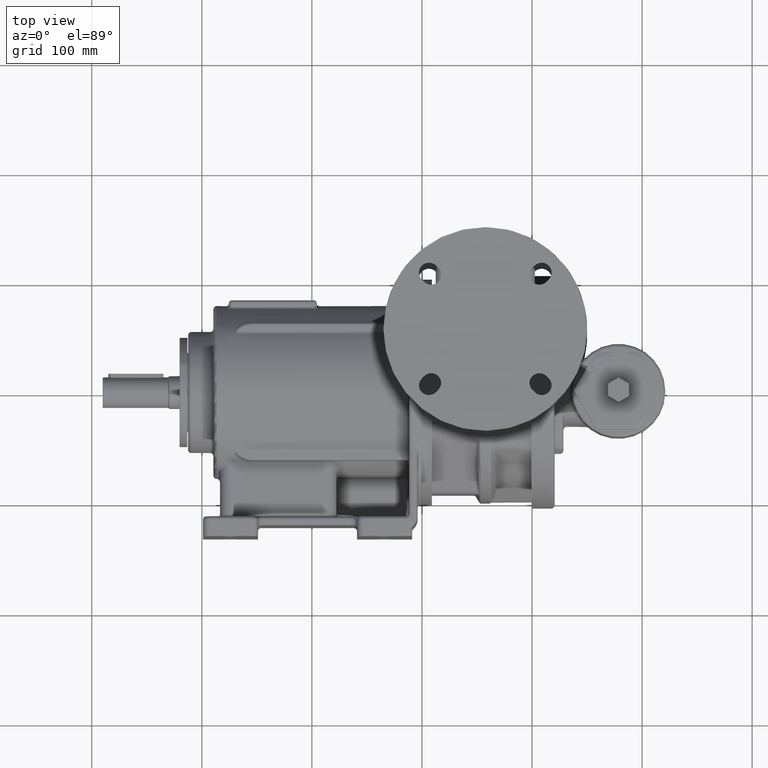
[diagram: clean part render]
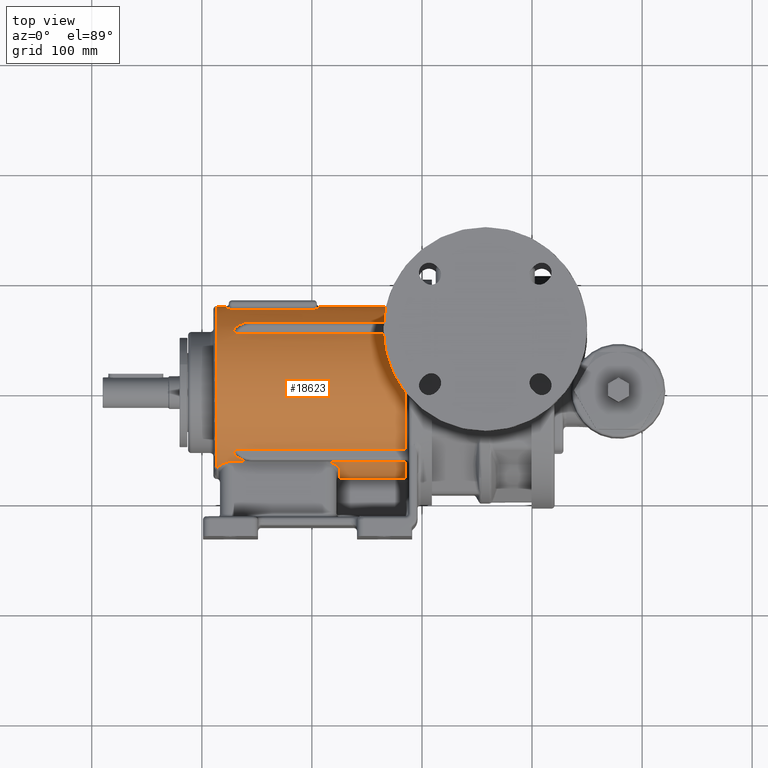
[diagram: same view with one face highlighted and labeled with its STEP entity id]
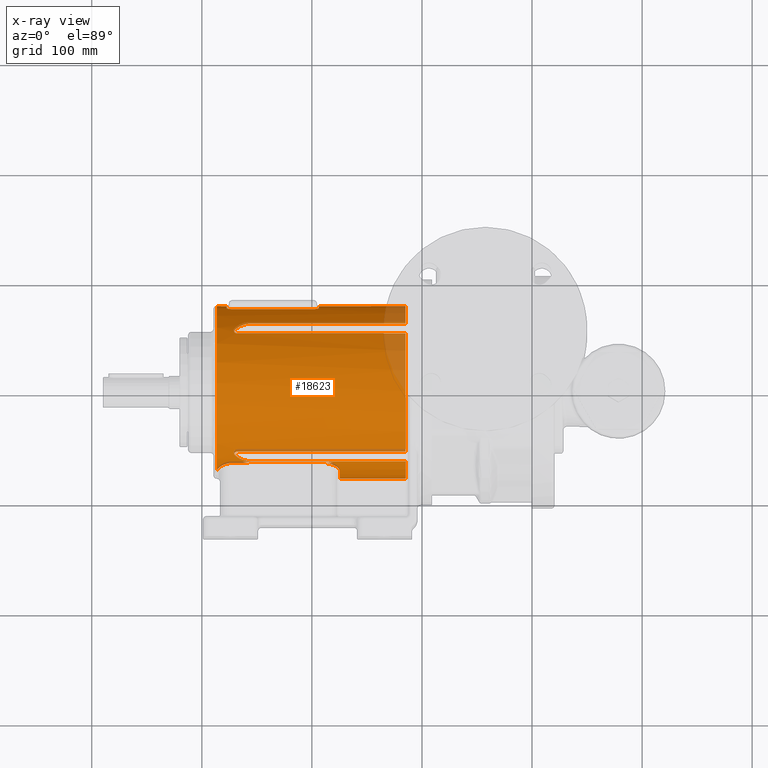
[diagram: x-ray of the same camera — body ghosted, the highlighted face saturated]
A machine part, top view. The second image highlights one B-rep face of the part: STEP entity #18623.
The next image is the same camera in x-ray: the body ghosted, the highlighted face saturated — about 7% of this face is hidden behind the body in this view.
In plain terms, the highlighted cylindrical surface (partial cylindrical patch) has radius 78.5 mm, axis along (1, 0, 0).
Its self-contained STEP definition (entity closure, byte-faithful):
#484=CARTESIAN_POINT('',(-1.5E1,0.E0,0.E0));
#485=DIRECTION('',(-1.E0,0.E0,0.E0));
#486=DIRECTION('',(0.E0,-9.951706942797E-1,9.815950920245E-2));
#487=AXIS2_PLACEMENT_3D('',#484,#485,#486);
#501=CARTESIAN_POINT('',(-1.668060122523E2,5.259759268250E1,-5.827300613497E1));
#502=CARTESIAN_POINT('',(-1.669124884728E2,5.259745140026E1,-5.827308478170E1));
#503=CARTESIAN_POINT('',(-1.671191517579E2,5.260036927245E1,-5.827052295053E1));
#504=CARTESIAN_POINT('',(-1.674101852165E2,5.261546896087E1,-5.825686181501E1));
#505=CARTESIAN_POINT('',(-1.676825456342E2,5.263959549973E1,-5.823507233604E1));
#506=CARTESIAN_POINT('',(-1.679369506952E2,5.267145621044E1,-5.820625743691E1));
#507=CARTESIAN_POINT('',(-1.681734399507E2,5.271007946990E1,-5.817128662438E1));
#508=CARTESIAN_POINT('',(-1.683924445313E2,5.275468049040E1,-5.813084422051E1));
#509=CARTESIAN_POINT('',(-1.685975060358E2,5.280510633246E1,-5.808504524352E1));
#510=CARTESIAN_POINT('',(-1.687924707743E2,5.286183997677E1,-5.803342209129E1));
#511=CARTESIAN_POINT('',(-1.689794701536E2,5.292535906179E1,-5.797550404772E1));
#512=CARTESIAN_POINT('',(-1.691574351655E2,5.299449957422E1,-5.791231437715E1));
#513=CARTESIAN_POINT('',(-1.693257756245E2,5.306846534077E1,-5.784454639646E1));
#514=CARTESIAN_POINT('',(-1.694844184894E2,5.314686407924E1,-5.777252670172E1));
#515=CARTESIAN_POINT('',(-1.696342381301E2,5.323007255173E1,-5.769587444394E1));
#516=CARTESIAN_POINT('',(-1.697755475006E2,5.331878529299E1,-5.761390720225E1));
#517=CARTESIAN_POINT('',(-1.699094737893E2,5.341281534243E1,-5.752674986470E1));
#518=CARTESIAN_POINT('',(-1.700366730125E2,5.351213763082E1,-5.743437658177E1));
#519=CARTESIAN_POINT('',(-1.701575475665E2,5.361709143348E1,-5.733641742677E1));
#520=CARTESIAN_POINT('',(-1.702716518613E2,5.372771226581E1,-5.723277904738E1));
#521=CARTESIAN_POINT('',(-1.703776505604E2,5.384377240091E1,-5.712361176089E1));
#522=CARTESIAN_POINT('',(-1.704750905897E2,5.396474377725E1,-5.700935052415E1));
#523=CARTESIAN_POINT('',(-1.705643257766E2,5.409069263950E1,-5.688987141576E1));
#524=CARTESIAN_POINT('',(-1.706458154223E2,5.422236415600E1,-5.676439742962E1));
#525=CARTESIAN_POINT('',(-1.707196309692E2,5.436055535970E1,-5.663208304787E1));
#526=CARTESIAN_POINT('',(-1.707850443664E2,5.450512405203E1,-5.649296829583E1));
#527=CARTESIAN_POINT('',(-1.708410570191E2,5.465552740098E1,-5.634747984245E1));
#528=CARTESIAN_POINT('',(-1.708868665289E2,5.481124984419E1,-5.619602477885E1));
#529=CARTESIAN_POINT('',(-1.709220551375E2,5.497241346231E1,-5.603839179557E1));
#530=CARTESIAN_POINT('',(-1.709462574366E2,5.513954727374E1,-5.587396001847E1));
#531=CARTESIAN_POINT('',(-1.709590701873E2,5.531303156499E1,-5.570223655364E1));
#532=CARTESIAN_POINT('',(-1.709597952121E2,5.549233908335E1,-5.552361998873E1));
#533=CARTESIAN_POINT('',(-1.709473044787E2,5.567683863102E1,-5.533862155835E1));
#534=CARTESIAN_POINT('',(-1.709208740556E2,5.586578198217E1,-5.514788375321E1));
#535=CARTESIAN_POINT('',(-1.708798286437E2,5.605927926475E1,-5.495119013591E1));
#536=CARTESIAN_POINT('',(-1.708236500992E2,5.625750970728E1,-5.474824351900E1));
#537=CARTESIAN_POINT('',(-1.707515268897E2,5.646019774495E1,-5.453920577348E1));
#538=CARTESIAN_POINT('',(-1.706626026011E2,5.666619294379E1,-5.432515487496E1));
#539=CARTESIAN_POINT('',(-1.705565744611E2,5.687428763717E1,-5.410726419440E1));
#540=CARTESIAN_POINT('',(-1.704329872248E2,5.708415227250E1,-5.388581458286E1));
#541=CARTESIAN_POINT('',(-1.702911374212E2,5.729612912363E1,-5.366037621227E1));
#542=CARTESIAN_POINT('',(-1.701297601856E2,5.751014393464E1,-5.343095105887E1));
#543=CARTESIAN_POINT('',(-1.699483368156E2,5.772518055851E1,-5.319856274022E1));
#544=CARTESIAN_POINT('',(-1.697466728507E2,5.794019343651E1,-5.296430831912E1));
#545=CARTESIAN_POINT('',(-1.695248087487E2,5.815450825360E1,-5.272889334444E1));
#546=CARTESIAN_POINT('',(-1.693637635080E2,5.829567491138E1,-5.257258326948E1));
#547=CARTESIAN_POINT('',(-1.692799125505E2,5.836591709098E1,-5.249447325318E1));
#549=CARTESIAN_POINT('',(-1.554999999999E2,6.332975460123E1,-4.638525824169E1));
#550=CARTESIAN_POINT('',(-1.556654730622E2,6.332975405035E1,-4.638525888579E1));
#551=CARTESIAN_POINT('',(-1.559974500562E2,6.332595628489E1,-4.639044479961E1));
#552=CARTESIAN_POINT('',(-1.564984647084E2,6.330878252961E1,-4.641388299563E1));
#553=CARTESIAN_POINT('',(-1.570026589121E2,6.327988842038E1,-4.645327608035E1));
#554=CARTESIAN_POINT('',(-1.575100034597E2,6.323888248410E1,-4.650909403634E1));
#555=CARTESIAN_POINT('',(-1.580206510595E2,6.318555291975E1,-4.658153323706E1));
#556=CARTESIAN_POINT('',(-1.585345282902E2,6.311956870443E1,-4.667092216673E1));
#557=CARTESIAN_POINT('',(-1.590523039673E2,6.304040740255E1,-4.677781458684E1));
#558=CARTESIAN_POINT('',(-1.595749661799E2,6.294751726881E1,-4.690276512444E1));
#559=CARTESIAN_POINT('',(-1.601030913092E2,6.284018056833E1,-4.704650791893E1));
#560=CARTESIAN_POINT('',(-1.606369602020E2,6.271766517499E1,-4.720974583199E1));
#561=CARTESIAN_POINT('',(-1.611768343887E2,6.257920850715E1,-4.739316739157E1));
#562=CARTESIAN_POINT('',(-1.617230954717E2,6.242387523880E1,-4.759762796111E1));
#563=CARTESIAN_POINT('',(-1.622761505916E2,6.225060454557E1,-4.782407480312E1));
#564=CARTESIAN_POINT('',(-1.628360161639E2,6.205837138824E1,-4.807332732118E1));
#565=CARTESIAN_POINT('',(-1.634025733762E2,6.184604002477E1,-4.834626041932E1));
#566=CARTESIAN_POINT('',(-1.639756332440E2,6.161245838507E1,-4.864367251589E1));
#567=CARTESIAN_POINT('',(-1.645549113820E2,6.135636285874E1,-4.896639783300E1));
#568=CARTESIAN_POINT('',(-1.651398017051E2,6.107651136072E1,-4.931512744519E1));
#569=CARTESIAN_POINT('',(-1.657296252974E2,6.077168837590E1,-4.969039974105E1));
#570=CARTESIAN_POINT('',(-1.663230476289E2,6.044076271459E1,-5.009252598470E1));
#571=CARTESIAN_POINT('',(-1.669185312040E2,6.008295955745E1,-5.052127308480E1));
#572=CARTESIAN_POINT('',(-1.675141994296E2,5.969745375781E1,-5.097636839406E1));
#573=CARTESIAN_POINT('',(-1.681078314093E2,5.928393189715E1,-5.145684819039E1));
#574=CARTESIAN_POINT('',(-1.686977509209E2,5.884173118445E1,-5.196209932149E1));
#575=CARTESIAN_POINT('',(-1.690861417544E2,5.852826837185E1,-5.231394171693E1));
#576=CARTESIAN_POINT('',(-1.692795657484E2,5.836627183732E1,-5.249405879632E1));
#578=DIRECTION('',(-1.E0,0.E0,0.E0));
#579=VECTOR('',#578,1.404999999999E2);
#580=CARTESIAN_POINT('',(-1.5E1,6.332975460123E1,-4.638525824169E1));
#581=LINE('',#580,#579);
#582=CARTESIAN_POINT('',(-1.5E1,0.E0,0.E0));
#583=DIRECTION('',(1.E0,0.E0,0.E0));
#584=DIRECTION('',(0.E0,8.067484662577E-1,-5.908950094483E-1));
#585=AXIS2_PLACEMENT_3D('',#582,#583,#584);
#587=DIRECTION('',(-1.E0,-9.670967072791E-13,1.324795552156E-12));
#588=VECTOR('',#587,1.404999999862E2);
#589=CARTESIAN_POINT('',(-1.5E1,6.332975460123E1,4.638525824169E1));
#590=LINE('',#589,#588);
#591=CARTESIAN_POINT('',(-1.555E2,6.332975460123E1,4.638525824169E1));
#592=CARTESIAN_POINT('',(-1.556670971500E2,6.332975530650E1,4.638525345007E1));
#593=CARTESIAN_POINT('',(-1.560022368684E2,6.332579006522E1,4.639067351990E1));
#594=CARTESIAN_POINT('',(-1.565079191187E2,6.330801971357E1,4.641492333365E1));
#595=CARTESIAN_POINT('',(-1.570161648028E2,6.327843040390E1,4.645526274082E1));
#596=CARTESIAN_POINT('',(-1.575266495940E2,6.323691075245E1,4.651177528962E1));
#597=CARTESIAN_POINT('',(-1.580390621819E2,6.318323100314E1,4.658468295514E1));
#598=CARTESIAN_POINT('',(-1.585525840470E2,6.311707840411E1,4.667429011521E1));
#599=CARTESIAN_POINT('',(-1.590683091770E2,6.303783157338E1,4.678128582203E1));
#600=CARTESIAN_POINT('',(-1.595891175127E2,6.294479275853E1,4.690642202185E1));
#601=CARTESIAN_POINT('',(-1.601176909516E2,6.283688794819E1,4.705090739461E1));
#602=CARTESIAN_POINT('',(-1.606541126482E2,6.271332991926E1,4.721550766953E1));
#603=CARTESIAN_POINT('',(-1.611968701685E2,6.257366681447E1,4.740048693857E1));
#604=CARTESIAN_POINT('',(-1.617445249190E2,6.241750023104E1,4.760598927758E1));
#605=CARTESIAN_POINT('',(-1.622973599803E2,6.224388023063E1,4.783282684745E1));
#606=CARTESIAN_POINT('',(-1.628560108724E2,6.205155098959E1,4.808213043958E1));
#607=CARTESIAN_POINT('',(-1.634208631202E2,6.183923995774E1,4.835495791149E1));
#608=CARTESIAN_POINT('',(-1.639926852706E2,6.160542233984E1,4.865258535574E1));
#609=CARTESIAN_POINT('',(-1.645723107913E2,6.134835133435E1,4.897644084040E1));
#610=CARTESIAN_POINT('',(-1.651589408842E2,6.106700890808E1,4.932690089337E1));
#611=CARTESIAN_POINT('',(-1.657498214484E2,6.076102041046E1,4.970344749013E1));
#612=CARTESIAN_POINT('',(-1.663425541022E2,6.042976507089E1,5.010579208137E1));
#613=CARTESIAN_POINT('',(-1.669356658409E2,6.007240376808E1,5.053381724861E1));
#614=CARTESIAN_POINT('',(-1.675277028211E2,5.968832263482E1,5.098705071180E1));
#615=CARTESIAN_POINT('',(-1.681175010264E2,5.927674063189E1,5.146510947168E1));
#616=CARTESIAN_POINT('',(-1.687029920857E2,5.883810574173E1,5.196619515600E1));
#617=CARTESIAN_POINT('',(-1.690901337834E2,5.852414300229E1,5.231855244057E1));
#618=CARTESIAN_POINT('',(-1.692834580644E2,5.836220167981E1,5.249860393463E1));
#620=CARTESIAN_POINT('',(-1.692834580644E2,5.836220167981E1,5.249860393463E1));
#621=CARTESIAN_POINT('',(-1.693666197698E2,5.829254367452E1,5.257605087009E1));
#622=CARTESIAN_POINT('',(-1.695270065624E2,5.815275009731E1,5.273083051413E1));
#623=CARTESIAN_POINT('',(-1.697479650776E2,5.793880176727E1,5.296582789664E1));
#624=CARTESIAN_POINT('',(-1.699479051188E2,5.772547938074E1,5.319823319243E1));
#625=CARTESIAN_POINT('',(-1.701281575946E2,5.751187537094E1,5.342908398234E1));
#626=CARTESIAN_POINT('',(-1.702894343374E2,5.729860832715E1,5.365772901506E1));
#627=CARTESIAN_POINT('',(-1.704321728916E2,5.708578175035E1,5.388409224340E1));
#628=CARTESIAN_POINT('',(-1.705563273670E2,5.687458653715E1,5.410695251319E1));
#629=CARTESIAN_POINT('',(-1.706622066062E2,5.666636572836E1,5.432497268748E1));
#630=CARTESIAN_POINT('',(-1.707508380138E2,5.646173942288E1,5.453760532110E1));
#631=CARTESIAN_POINT('',(-1.708229140164E2,5.626055571554E1,5.474511091061E1));
#632=CARTESIAN_POINT('',(-1.708791509108E2,5.606263448285E1,5.494776774582E1));
#633=CARTESIAN_POINT('',(-1.709201333690E2,5.586855574752E1,5.514507549458E1));
#634=CARTESIAN_POINT('',(-1.709467795988E2,5.567903886564E1,5.533640833585E1));
#635=CARTESIAN_POINT('',(-1.709597674695E2,5.549465870303E1,5.552130088223E1));
#636=CARTESIAN_POINT('',(-1.709595046062E2,5.531567701598E1,5.569960890597E1));
#637=CARTESIAN_POINT('',(-1.709466874490E2,5.514225922653E1,5.587128411743E1));
#638=CARTESIAN_POINT('',(-1.709221137480E2,5.497454903237E1,5.603629829139E1));
#639=CARTESIAN_POINT('',(-1.708867831649E2,5.481268140459E1,5.619462926943E1));
#640=CARTESIAN_POINT('',(-1.708412999499E2,5.465697418413E1,5.634607560336E1));
#641=CARTESIAN_POINT('',(-1.707861020430E2,5.450738095972E1,5.649078911686E1));
#642=CARTESIAN_POINT('',(-1.707215150902E2,5.436354826683E1,5.662920956986E1));
#643=CARTESIAN_POINT('',(-1.706476865874E2,5.422498644614E1,5.676189414245E1));
#644=CARTESIAN_POINT('',(-1.705649700205E2,5.409172412210E1,5.688889329280E1));
#645=CARTESIAN_POINT('',(-1.704742987798E2,5.396426193711E1,5.700980793119E1));
#646=CARTESIAN_POINT('',(-1.703765556324E2,5.384308769468E1,5.712425646706E1));
#647=CARTESIAN_POINT('',(-1.702719158807E2,5.372799030832E1,5.723251654255E1));
#648=CARTESIAN_POINT('',(-1.701600833693E2,5.361856213093E1,5.733504075781E1));
#649=CARTESIAN_POINT('',(-1.700403749494E2,5.351457863708E1,5.743210143597E1));
#650=CARTESIAN_POINT('',(-1.699131301169E2,5.341559127918E1,5.752417228400E1));
#651=CARTESIAN_POINT('',(-1.697785226882E2,5.332135426257E1,5.761153012184E1));
#652=CARTESIAN_POINT('',(-1.696362743351E2,5.323182662169E1,5.769425721913E1));
#653=CARTESIAN_POINT('',(-1.694861171784E2,5.314732212712E1,5.777210618817E1));
#654=CARTESIAN_POINT('',(-1.693275736886E2,5.306861251752E1,5.784441102695E1));
#655=CARTESIAN_POINT('',(-1.691610783407E2,5.299560322136E1,5.791130345618E1));
#656=CARTESIAN_POINT('',(-1.689858399460E2,5.292775003134E1,5.797332047245E1));
#657=CARTESIAN_POINT('',(-1.688005674426E2,5.286481812204E1,5.803070939323E1));
#658=CARTESIAN_POINT('',(-1.686038610695E2,5.280700498326E1,5.808331997791E1));
#659=CARTESIAN_POINT('',(-1.683950441444E2,5.275519438409E1,5.813037842499E1));
#660=CARTESIAN_POINT('',(-1.681734799929E2,5.270989474482E1,5.817145403682E1));
#661=CARTESIAN_POINT('',(-1.679386816863E2,5.267155080768E1,5.820617175304E1));
#662=CARTESIAN_POINT('',(-1.676877280886E2,5.264026564957E1,5.823446595250E1));
#663=CARTESIAN_POINT('',(-1.674179941624E2,5.261631998098E1,5.825609505848E1));
#664=CARTESIAN_POINT('',(-1.671267420674E2,5.260073175155E1,5.827018902747E1));
#665=CARTESIAN_POINT('',(-1.669156046180E2,5.259749167020E1,5.827306304234E1));
#666=CARTESIAN_POINT('',(-1.668060122523E2,5.259759268250E1,5.827300613497E1));
#668=CARTESIAN_POINT('',(-1.668060122523E2,-5.259759268250E1,5.827300613497E1));
#669=CARTESIAN_POINT('',(-1.669141635160E2,-5.259747328108E1,5.827307282646E1));
#670=CARTESIAN_POINT('',(-1.671232798339E2,-5.260058258115E1,5.827032681358E1));
#671=CARTESIAN_POINT('',(-1.674147099210E2,-5.261594158355E1,5.825643595986E1));
#672=CARTESIAN_POINT('',(-1.676859541318E2,-5.264004721349E1,5.823466371079E1));
#673=CARTESIAN_POINT('',(-1.679387688299E2,-5.267163932439E1,5.820609170273E1));
#674=CARTESIAN_POINT('',(-1.681744133705E2,-5.271013986784E1,5.817123191614E1));
#675=CARTESIAN_POINT('',(-1.683944884806E2,-5.275507633570E1,5.813048524372E1));
#676=CARTESIAN_POINT('',(-1.686010812292E2,-5.280613495460E1,5.808411051099E1));
#677=CARTESIAN_POINT('',(-1.687966237168E2,-5.286340963487E1,5.803199237905E1));
#678=CARTESIAN_POINT('',(-1.689826372048E2,-5.292662844502E1,5.797434478704E1));
#679=CARTESIAN_POINT('',(-1.691591944629E2,-5.299505932043E1,5.791180162552E1));
#680=CARTESIAN_POINT('',(-1.693265882230E2,-5.306847020266E1,5.784454164742E1));
#681=CARTESIAN_POINT('',(-1.694851089408E2,-5.314684315881E1,5.777254625721E1));
#682=CARTESIAN_POINT('',(-1.696349143015E2,-5.323066483670E1,5.769532860330E1));
#683=CARTESIAN_POINT('',(-1.697765891529E2,-5.331988096008E1,5.761289355278E1));
#684=CARTESIAN_POINT('',(-1.699110065744E2,-5.341414585332E1,5.752551462052E1));
#685=CARTESIAN_POINT('',(-1.700384820711E2,-5.351346760112E1,5.743313720071E1));
#686=CARTESIAN_POINT('',(-1.701591339584E2,-5.361805314106E1,5.733551753539E1));
#687=CARTESIAN_POINT('',(-1.702723409463E2,-5.372819799488E1,5.723232251587E1));
#688=CARTESIAN_POINT('',(-1.703776380312E2,-5.384397409755E1,5.712342157343E1));
#689=CARTESIAN_POINT('',(-1.704752082496E2,-5.396521300321E1,5.700890715848E1));
#690=CARTESIAN_POINT('',(-1.705650657248E2,-5.409198299698E1,5.688864589930E1));
#691=CARTESIAN_POINT('',(-1.706471512228E2,-5.422450709318E1,5.676235132710E1));
#692=CARTESIAN_POINT('',(-1.707210856086E2,-5.436298585026E1,5.662974997146E1));
#693=CARTESIAN_POINT('',(-1.707861659879E2,-5.450742887406E1,5.649074422794E1));
#694=CARTESIAN_POINT('',(-1.708417635086E2,-5.465779037977E1,5.634528494432E1));
#695=CARTESIAN_POINT('',(-1.708872950048E2,-5.481383826626E1,5.619350099653E1));
#696=CARTESIAN_POINT('',(-1.709223503466E2,-5.497564162449E1,5.603522617448E1));
#697=CARTESIAN_POINT('',(-1.709466131968E2,-5.514337913638E1,5.587017929070E1));
#698=CARTESIAN_POINT('',(-1.709594739337E2,-5.531725486603E1,5.569804313204E1));
#699=CARTESIAN_POINT('',(-1.709597840698E2,-5.549679180144E1,5.551916970309E1));
#700=CARTESIAN_POINT('',(-1.709467579746E2,-5.568123268275E1,5.533419977294E1));
#701=CARTESIAN_POINT('',(-1.709199080866E2,-5.586974429937E1,5.514386823849E1));
#702=CARTESIAN_POINT('',(-1.708789652474E2,-5.606255263339E1,5.494784871204E1));
#703=CARTESIAN_POINT('',(-1.708230410622E2,-5.625996881381E1,5.474571447711E1));
#704=CARTESIAN_POINT('',(-1.707509059798E2,-5.646190273074E1,5.453743900934E1));
#705=CARTESIAN_POINT('',(-1.706618547936E2,-5.666749957605E1,5.432379181062E1));
#706=CARTESIAN_POINT('',(-1.705554709843E2,-5.687596053338E1,5.410550761602E1));
#707=CARTESIAN_POINT('',(-1.704315637259E2,-5.708661431304E1,5.388320823745E1));
#708=CARTESIAN_POINT('',(-1.702893591407E2,-5.729881107809E1,5.365751121354E1));
#709=CARTESIAN_POINT('',(-1.701283738864E2,-5.751181995694E1,5.342914325724E1));
#710=CARTESIAN_POINT('',(-1.699479894415E2,-5.772536378309E1,5.319835867619E1));
#711=CARTESIAN_POINT('',(-1.697479875852E2,-5.793870906258E1,5.296592915259E1));
#712=CARTESIAN_POINT('',(-1.695271062032E2,-5.815281566086E1,5.273076037737E1));
#713=CARTESIAN_POINT('',(-1.693668748512E2,-5.829223089107E1,5.257639140408E1));
#714=CARTESIAN_POINT('',(-1.692839296065E2,-5.836169464748E1,5.249916759220E1));
#716=CARTESIAN_POINT('',(-1.555E2,-6.332975460123E1,4.638525824169E1));
#717=CARTESIAN_POINT('',(-1.556671375429E2,-6.332975533254E1,4.638525340295E1));
#718=CARTESIAN_POINT('',(-1.560023270944E2,-6.332578825543E1,4.639067599643E1));
#719=CARTESIAN_POINT('',(-1.565079716981E2,-6.330801732215E1,4.641492659314E1));
#720=CARTESIAN_POINT('',(-1.570161259560E2,-6.327843340752E1,4.645525864421E1));
#721=CARTESIAN_POINT('',(-1.575265042525E2,-6.323692477409E1,4.651175621214E1));
#722=CARTESIAN_POINT('',(-1.580388343679E2,-6.318325853269E1,4.658464560510E1));
#723=CARTESIAN_POINT('',(-1.585523509676E2,-6.311711159297E1,4.667424522618E1));
#724=CARTESIAN_POINT('',(-1.590680611013E2,-6.303787233532E1,4.678123088095E1));
#725=CARTESIAN_POINT('',(-1.595888320326E2,-6.294484680330E1,4.690634945458E1));
#726=CARTESIAN_POINT('',(-1.601173256738E2,-6.283696771051E1,4.705080082319E1));
#727=CARTESIAN_POINT('',(-1.606537470953E2,-6.271342119396E1,4.721538642290E1));
#728=CARTESIAN_POINT('',(-1.611965243595E2,-6.257376317930E1,4.740035970180E1));
#729=CARTESIAN_POINT('',(-1.617441375157E2,-6.241761737909E1,4.760583557334E1));
#730=CARTESIAN_POINT('',(-1.622968656859E2,-6.224404057677E1,4.783261804944E1));
#731=CARTESIAN_POINT('',(-1.628554814958E2,-6.205173624005E1,4.808189136369E1));
#732=CARTESIAN_POINT('',(-1.634204304840E2,-6.183940198908E1,4.835475086782E1));
#733=CARTESIAN_POINT('',(-1.639923822227E2,-6.160554261802E1,4.865243318681E1));
#734=CARTESIAN_POINT('',(-1.645720749256E2,-6.134845518619E1,4.897631083226E1));
#735=CARTESIAN_POINT('',(-1.651587953817E2,-6.106708836485E1,4.932680268070E1));
#736=CARTESIAN_POINT('',(-1.657496876392E2,-6.076109155602E1,4.970336032292E1));
#737=CARTESIAN_POINT('',(-1.663422558545E2,-6.042992440985E1,5.010559924707E1));
#738=CARTESIAN_POINT('',(-1.669351444340E2,-6.007270475024E1,5.053345845938E1));
#739=CARTESIAN_POINT('',(-1.675270321363E2,-5.968876530697E1,5.098653220500E1));
#740=CARTESIAN_POINT('',(-1.681168696829E2,-5.927719648961E1,5.146458386297E1));
#741=CARTESIAN_POINT('',(-1.687025819915E2,-5.883848583163E1,5.196576868507E1));
#742=CARTESIAN_POINT('',(-1.690902151025E2,-5.852396505639E1,5.231875137434E1));
#743=CARTESIAN_POINT('',(-1.692839296065E2,-5.836169464748E1,5.249916759220E1));
#745=DIRECTION('',(-1.E0,8.639795088102E-13,1.183445591528E-12));
#746=VECTOR('',#745,1.404999999878E2);
#747=CARTESIAN_POINT('',(-1.5E1,-6.332975460123E1,4.638525824169E1));
#748=LINE('',#747,#746);
#749=CARTESIAN_POINT('',(-1.499999999999E1,-7.812089899906E1,7.705521422877E0));
#750=CARTESIAN_POINT('',(-1.499999598365E1,-7.812192983945E1,7.695071042227E0));
#751=CARTESIAN_POINT('',(-1.500042103517E1,-7.812398305336E1,7.674218575636E0));
#752=CARTESIAN_POINT('',(-1.500194911942E1,-7.812703595738E1,7.643073602118E0));
#753=CARTESIAN_POINT('',(-1.500367420730E1,-7.812905219882E1,7.622420640681E0));
#754=CARTESIAN_POINT('',(-1.500471090074E1,-7.813005571550E1,7.612121205362E0));
#756=DIRECTION('',(-1.E0,2.500644752989E-9,-1.809469899180E-10));
#757=VECTOR('',#756,5.949057643472E1);
#758=CARTESIAN_POINT('',(-1.500471090074E1,-7.813005571550E1,7.612121205362E0));
#759=LINE('',#758,#757);
#760=CARTESIAN_POINT('',(-7.450000000001E1,-7.812089897762E1,7.705521420774E0));
#761=CARTESIAN_POINT('',(-7.449999958429E1,-7.812192717882E1,7.695097149078E0));
#762=CARTESIAN_POINT('',(-7.449957060489E1,-7.812397708561E1,7.674279456282E0));
#763=CARTESIAN_POINT('',(-7.449802490357E1,-7.812702995553E1,7.643135716633E0));
#764=CARTESIAN_POINT('',(-7.449632580981E1,-7.812904951741E1,7.622446346615E0));
#765=CARTESIAN_POINT('',(-7.449528733546E1,-7.813005556674E1,7.612121194597E0));
#767=CARTESIAN_POINT('',(-7.45E1,0.E0,0.E0));
#768=DIRECTION('',(-1.E0,0.E0,0.E0));
#769=DIRECTION('',(0.E0,-9.951706942797E-1,9.815950920245E-2));
#770=AXIS2_PLACEMENT_3D('',#767,#768,#769);
#772=CARTESIAN_POINT('',(-7.45E1,-7.134274986140E1,3.274846625743E1));
#773=CARTESIAN_POINT('',(-7.450000924274E1,-7.126133540472E1,3.292582683804E1));
#774=CARTESIAN_POINT('',(-7.450730698588E1,-7.109656497578E1,3.328129625685E1));
#775=CARTESIAN_POINT('',(-7.454043130452E1,-7.084321430530E1,3.381725705764E1));
#776=CARTESIAN_POINT('',(-7.459597758652E1,-7.058443503522E1,3.435413197426E1));
#777=CARTESIAN_POINT('',(-7.467409656897E1,-7.032075736585E1,3.489069222424E1));
#778=CARTESIAN_POINT('',(-7.477485175978E1,-7.005282966872E1,3.542555867714E1));
#779=CARTESIAN_POINT('',(-7.489819882285E1,-6.978136306110E1,3.595733279508E1));
#780=CARTESIAN_POINT('',(-7.504407838581E1,-6.950696741777E1,3.648491173866E1));
#781=CARTESIAN_POINT('',(-7.521250376558E1,-6.923002610345E1,3.700769491444E1));
#782=CARTESIAN_POINT('',(-7.540350709529E1,-6.895093601643E1,3.752509448810E1));
#783=CARTESIAN_POINT('',(-7.561682673630E1,-6.867049069031E1,3.803584676392E1));
#784=CARTESIAN_POINT('',(-7.585191639142E1,-6.838968580873E1,3.853841973384E1));
#785=CARTESIAN_POINT('',(-7.610811243764E1,-6.810948896817E1,3.903143462700E1));
#786=CARTESIAN_POINT('',(-7.638486254828E1,-6.783080298974E1,3.951371346885E1));
#787=CARTESIAN_POINT('',(-7.668152265718E1,-6.755451671914E1,3.998417501542E1));
#788=CARTESIAN_POINT('',(-7.699727127325E1,-6.728158366002E1,4.044169439331E1));
#789=CARTESIAN_POINT('',(-7.733104475482E1,-6.701303881260E1,4.088507737791E1));
#790=CARTESIAN_POINT('',(-7.768162315572E1,-6.674986955314E1,4.131327082517E1));
#791=CARTESIAN_POINT('',(-7.804797123197E1,-6.649297170389E1,4.172541772272E1));
#792=CARTESIAN_POINT('',(-7.842904139271E1,-6.624317863536E1,4.212079412128E1));
#793=CARTESIAN_POINT('',(-7.882370517271E1,-6.600127119235E1,4.249878151599E1));
#794=CARTESIAN_POINT('',(-7.923079503821E1,-6.576795691402E1,4.285888885366E1));
#795=CARTESIAN_POINT('',(-7.964909558333E1,-6.554384495114E1,4.320077865319E1));
#796=CARTESIAN_POINT('',(-8.007728684909E1,-6.532961327866E1,4.352400464447E1));
#797=CARTESIAN_POINT('',(-8.051392467400E1,-6.512595219980E1,4.382809942513E1));
#798=CARTESIAN_POINT('',(-8.095759938609E1,-6.493340574329E1,4.411280620030E1));
#799=CARTESIAN_POINT('',(-8.140780170230E1,-6.475206245952E1,4.437851491950E1));
#800=CARTESIAN_POINT('',(-8.186421891618E1,-6.458194747411E1,4.462566437970E1));
#801=CARTESIAN_POINT('',(-8.232599886365E1,-6.442327755772E1,4.485437676485E1));
#802=CARTESIAN_POINT('',(-8.279152979320E1,-6.427647608006E1,4.506444965034E1));
#803=CARTESIAN_POINT('',(-8.325933027469E1,-6.414182876630E1,4.525585445357E1));
#804=CARTESIAN_POINT('',(-8.372938087676E1,-6.401916697133E1,4.542917338137E1));
#805=CARTESIAN_POINT('',(-8.420204613295E1,-6.390833116843E1,4.558493247032E1));
#806=CARTESIAN_POINT('',(-8.467716578102E1,-6.380927021239E1,4.572346809929E1));
#807=CARTESIAN_POINT('',(-8.515351607968E1,-6.372204835586E1,4.584492321100E1));
#808=CARTESIAN_POINT('',(-8.563010925279E1,-6.364669379171E1,4.594946180556E1));
#809=CARTESIAN_POINT('',(-8.610697455705E1,-6.358308499904E1,4.603742509344E1));
#810=CARTESIAN_POINT('',(-8.658435194678E1,-6.353121501499E1,4.610896597474E1));
#811=CARTESIAN_POINT('',(-8.706233336284E1,-6.349097623390E1,4.616434836945E1));
#812=CARTESIAN_POINT('',(-8.754087579265E1,-6.346218486928E1,4.620391314793E1));
#813=CARTESIAN_POINT('',(-8.802002902743E1,-6.344481497512E1,4.622775720972E1));
#814=CARTESIAN_POINT('',(-8.833993480213E1,-6.344090424174E1,4.623312365351E1));
#815=CARTESIAN_POINT('',(-8.850000000634E1,-6.344090004243E1,4.623312883428E1));
#817=DIRECTION('',(-1.E0,-5.701259571316E-13,-7.788901800101E-13));
#818=VECTOR('',#817,8.399999998452E1);
#819=CARTESIAN_POINT('',(-8.850000000634E1,-6.344090004243E1,4.623312883428E1));
#820=LINE('',#819,#818);
#821=CARTESIAN_POINT('',(-1.725E2,-6.344090004237E1,4.623312883436E1));
#822=CARTESIAN_POINT('',(-1.726596730254E2,-6.344090190779E1,4.623312406928E1));
#823=CARTESIAN_POINT('',(-1.729790795853E2,-6.344483454677E1,4.622773165723E1));
#824=CARTESIAN_POINT('',(-1.734585241490E2,-6.346230902707E1,4.620374232772E1));
#825=CARTESIAN_POINT('',(-1.739378439953E2,-6.349124466814E1,4.616397938832E1));
#826=CARTESIAN_POINT('',(-1.744167253818E2,-6.353160297232E1,4.610843145448E1));
#827=CARTESIAN_POINT('',(-1.748947975347E2,-6.358342159682E1,4.603696003667E1));
#828=CARTESIAN_POINT('',(-1.753715391847E2,-6.364682977371E1,4.594927315564E1));
#829=CARTESIAN_POINT('',(-1.758467302255E2,-6.372197893066E1,4.584501926948E1));
#830=CARTESIAN_POINT('',(-1.763210968933E2,-6.380891097639E1,4.572396887938E1));
#831=CARTESIAN_POINT('',(-1.767952450535E2,-6.390782960225E1,4.558563570010E1));
#832=CARTESIAN_POINT('',(-1.772690121757E2,-6.401887854105E1,4.542958070227E1));
#833=CARTESIAN_POINT('',(-1.777408777127E2,-6.414189505788E1,4.525576136546E1));
#834=CARTESIAN_POINT('',(-1.782092925110E2,-6.427664945786E1,4.506420190223E1));
#835=CARTESIAN_POINT('',(-1.786735814844E2,-6.442306110983E1,4.485468576604E1));
#836=CARTESIAN_POINT('',(-1.791338993939E2,-6.458124340640E1,4.462668204568E1));
#837=CARTESIAN_POINT('',(-1.795902292097E2,-6.475133887943E1,4.437957179694E1));
#838=CARTESIAN_POINT('',(-1.800416640808E2,-6.493318229250E1,4.411313787951E1));
#839=CARTESIAN_POINT('',(-1.804865688006E2,-6.512625052465E1,4.382765765034E1));
#840=CARTESIAN_POINT('',(-1.809234000516E2,-6.532993352126E1,4.352352285951E1));
#841=CARTESIAN_POINT('',(-1.813510827035E2,-6.554381410711E1,4.320082309177E1));
#842=CARTESIAN_POINT('',(-1.817687437828E2,-6.576755065348E1,4.285951060574E1));
#843=CARTESIAN_POINT('',(-1.821754868368E2,-6.600072625956E1,4.249962756314E1));
#844=CARTESIAN_POINT('',(-1.825701085099E2,-6.624267802119E1,4.212158210416E1));
#845=CARTESIAN_POINT('',(-1.829513727703E2,-6.649261870291E1,4.172598152132E1));
#846=CARTESIAN_POINT('',(-1.833181433598E2,-6.674970964664E1,4.131353064025E1));
#847=CARTESIAN_POINT('',(-1.836690723319E2,-6.701304964765E1,4.088506072117E1));
#848=CARTESIAN_POINT('',(-1.840029135830E2,-6.728167999838E1,4.044153436247E1));
#849=CARTESIAN_POINT('',(-1.843185751295E2,-6.755460790819E1,3.998402090283E1));
#850=CARTESIAN_POINT('',(-1.846152058623E2,-6.783092063693E1,3.951351208421E1));
#851=CARTESIAN_POINT('',(-1.848920647015E2,-6.810969149506E1,3.903108216445E1));
#852=CARTESIAN_POINT('',(-1.851484373533E2,-6.838995925728E1,3.853793476383E1));
#853=CARTESIAN_POINT('',(-1.853834903192E2,-6.867070345118E1,3.803546097782E1));
#854=CARTESIAN_POINT('',(-1.855965660305E2,-6.895088082133E1,3.752519199953E1));
#855=CARTESIAN_POINT('',(-1.857872915643E2,-6.922962913545E1,3.700843482196E1));
#856=CARTESIAN_POINT('',(-1.859556464282E2,-6.950650758241E1,3.648578851176E1));
#857=CARTESIAN_POINT('',(-1.861015846076E2,-6.978106605993E1,3.595791198322E1));
#858=CARTESIAN_POINT('',(-1.862250397775E2,-7.005278534572E1,3.542564909291E1));
#859=CARTESIAN_POINT('',(-1.863258600239E2,-7.032088086653E1,3.489044505602E1));
#860=CARTESIAN_POINT('',(-1.864040170724E2,-7.058466660751E1,3.435365719301E1));
#861=CARTESIAN_POINT('',(-1.864595726238E2,-7.084346966006E1,3.381672178956E1));
#862=CARTESIAN_POINT('',(-1.864926925028E2,-7.109675454767E1,3.328089013313E1));
#863=CARTESIAN_POINT('',(-1.864999845030E2,-7.126140328671E1,3.292567773180E1));
#864=CARTESIAN_POINT('',(-1.864999974845E2,-7.134274097943E1,3.274848560684E1));
#866=CARTESIAN_POINT('',(-1.865E2,0.E0,0.E0));
#867=DIRECTION('',(-1.E0,0.E0,0.E0));
#868=DIRECTION('',(0.E0,-9.088247258526E-1,4.171781605967E-1));
#869=AXIS2_PLACEMENT_3D('',#866,#867,#868);
#871=CARTESIAN_POINT('',(-1.865E2,0.E0,0.E0));
#872=DIRECTION('',(-1.E0,0.E0,0.E0));
#873=DIRECTION('',(0.E0,1.E0,0.E0));
#874=AXIS2_PLACEMENT_3D('',#871,#872,#873);
#876=CARTESIAN_POINT('',(-1.865E2,-7.134274986142E1,-3.274846625737E1));
#877=CARTESIAN_POINT('',(-1.864999906501E2,-7.126133886895E1,
-3.292581924561E1));
#878=CARTESIAN_POINT('',(-1.864926931883E2,-7.109657419508E1,
-3.328127649563E1));
#879=CARTESIAN_POINT('',(-1.864595696656E2,-7.084322789667E1,
-3.381722854780E1));
#880=CARTESIAN_POINT('',(-1.864040238560E2,-7.058444953376E1,
-3.435410220216E1));
#881=CARTESIAN_POINT('',(-1.863259045690E2,-7.032076958101E1,
-3.489066764610E1));
#882=CARTESIAN_POINT('',(-1.862251484504E2,-7.005283747409E1,
-3.542554333277E1));
#883=CARTESIAN_POINT('',(-1.861017993267E2,-6.978136293644E1,
-3.595733310224E1));
#884=CARTESIAN_POINT('',(-1.859559218896E2,-6.950696692558E1,
-3.648491262949E1));
#885=CARTESIAN_POINT('',(-1.857875048786E2,-6.923003491936E1,
-3.700767823687E1));
#886=CARTESIAN_POINT('',(-1.855965180438E2,-6.895096422829E1,
-3.752504248287E1));
#887=CARTESIAN_POINT('',(-1.853832077991E2,-6.867052725821E1,
-3.803578071062E1));
#888=CARTESIAN_POINT('',(-1.851481177193E2,-6.838972403864E1,
-3.853835190247E1));
#889=CARTESIAN_POINT('',(-1.848919199814E2,-6.810952536680E1,
-3.903137113403E1));
#890=CARTESIAN_POINT('',(-1.846151752217E2,-6.783084003979E1,
-3.951364982868E1));
#891=CARTESIAN_POINT('',(-1.843185291318E2,-6.755456073327E1,
-3.998410060070E1));
#892=CARTESIAN_POINT('',(-1.840027905148E2,-6.728163085280E1,
-4.044161588052E1));
#893=CARTESIAN_POINT('',(-1.836690140799E2,-6.701308340972E1,
-4.088500433887E1));
#894=CARTESIAN_POINT('',(-1.833184174809E2,-6.674990454078E1,
-4.131321437374E1));
#895=CARTESIAN_POINT('',(-1.829520632566E2,-6.649299862299E1,
-4.172537487273E1));
#896=CARTESIAN_POINT('',(-1.825709961625E2,-6.624320190911E1,
-4.212075751420E1));
#897=CARTESIAN_POINT('',(-1.821763502641E2,-6.600129971411E1,
-4.249873717182E1));
#898=CARTESIAN_POINT('',(-1.817692814347E2,-6.576799481096E1,
-4.285883063426E1));
#899=CARTESIAN_POINT('',(-1.813509907779E2,-6.554389217293E1,
-4.320070699658E1));
#900=CARTESIAN_POINT('',(-1.809227851095E2,-6.532965191686E1,
-4.352394675436E1));
#901=CARTESIAN_POINT('',(-1.804860993261E2,-6.512596568375E1,
-4.382807950610E1));
#902=CARTESIAN_POINT('',(-1.800423956388E2,-6.493340357803E1,
-4.411280941076E1));
#903=CARTESIAN_POINT('',(-1.795922176582E2,-6.475206727545E1,
-4.437850780703E1));
#904=CARTESIAN_POINT('',(-1.791358748087E2,-6.458197780052E1,
-4.462562041533E1));
#905=CARTESIAN_POINT('',(-1.786741147430E2,-6.442331439410E1,
-4.485432387981E1));
#906=CARTESIAN_POINT('',(-1.782085374844E2,-6.427649853072E1,
-4.506441769460E1));
#907=CARTESIAN_POINT('',(-1.777406677319E2,-6.414183149975E1,
-4.525585061593E1));
#908=CARTESIAN_POINT('',(-1.772706086532E2,-6.401916649481E1,
-4.542917404211E1));
#909=CARTESIAN_POINT('',(-1.767980025196E2,-6.390833745305E1,
-4.558492364176E1));
#910=CARTESIAN_POINT('',(-1.763229176368E2,-6.380928252811E1,
-4.572345090667E1));
#911=CARTESIAN_POINT('',(-1.758465535653E2,-6.372205957121E1,
-4.584490763060E1));
#912=CARTESIAN_POINT('',(-1.753699110099E2,-6.364669903315E1,
-4.594945455320E1));
#913=CARTESIAN_POINT('',(-1.748930108506E2,-6.358308568256E1,
-4.603742415686E1));
#914=CARTESIAN_POINT('',(-1.744156244316E2,-6.353120861325E1,
-4.610897479967E1));
#915=CARTESIAN_POINT('',(-1.739376526049E2,-6.349097022775E1,
-4.616435662637E1));
#916=CARTESIAN_POINT('',(-1.734591250965E2,-6.346218149997E1,
-4.620391777933E1));
#917=CARTESIAN_POINT('',(-1.729799827866E2,-6.344481425152E1,
-4.622775818440E1));
#918=CARTESIAN_POINT('',(-1.726600707843E2,-6.344090423921E1,
-4.623312369563E1));
#919=CARTESIAN_POINT('',(-1.724999999931E2,-6.344090004243E1,
-4.623312883427E1));
#921=DIRECTION('',(1.E0,-5.779926802858E-13,7.892945557949E-13));
#922=VECTOR('',#921,8.399999998354E1);
#923=CARTESIAN_POINT('',(-1.724999999931E2,-6.344090004243E1,
-4.623312883427E1));
#924=LINE('',#923,#922);
#925=CARTESIAN_POINT('',(-8.850000000958E1,-6.344090004248E1,
-4.623312883420E1));
#926=CARTESIAN_POINT('',(-8.834033809669E1,-6.344090182129E1,
-4.623312413098E1));
#927=CARTESIAN_POINT('',(-8.802094750082E1,-6.344483406641E1,
-4.622773234278E1));
#928=CARTESIAN_POINT('',(-8.754150487125E1,-6.346230824175E1,
-4.620374339932E1));
#929=CARTESIAN_POINT('',(-8.706217480806E1,-6.349124449219E1,
-4.616397963292E1));
#930=CARTESIAN_POINT('',(-8.658327747979E1,-6.353160416021E1,
-4.610842981877E1));
#931=CARTESIAN_POINT('',(-8.610519085750E1,-6.358342422978E1,
-4.603695640149E1));
#932=CARTESIAN_POINT('',(-8.562844324348E1,-6.364683226229E1,
-4.594926970671E1));
#933=CARTESIAN_POINT('',(-8.515326097169E1,-6.372197889489E1,
-4.584501931301E1));
#934=CARTESIAN_POINT('',(-8.467890876984E1,-6.380890706629E1,
-4.572397432907E1));
#935=CARTESIAN_POINT('',(-8.420476980082E1,-6.390782277036E1,
-4.558564527128E1));
#936=CARTESIAN_POINT('',(-8.373101367071E1,-6.401886872925E1,
-4.542959452185E1));
#937=CARTESIAN_POINT('',(-8.325916056480E1,-6.414188233966E1,
-4.525577938045E1));
#938=CARTESIAN_POINT('',(-8.279076071094E1,-6.427663385688E1,
-4.506422415420E1));
#939=CARTESIAN_POINT('',(-8.232646109029E1,-6.442304923749E1,
-4.485470283841E1));
#940=CARTESIAN_POINT('',(-8.186611538486E1,-6.458124085021E1,
-4.462668579915E1));
#941=CARTESIAN_POINT('',(-8.140974170472E1,-6.475135240159E1,
-4.437955212115E1));
#942=CARTESIAN_POINT('',(-8.095828994427E1,-6.493320235002E1,
-4.411310836616E1));
#943=CARTESIAN_POINT('',(-8.051338953393E1,-6.512626797099E1,
-4.382763168202E1));
#944=CARTESIAN_POINT('',(-8.007658286905E1,-6.532993851849E1,
-4.352351530339E1));
#945=CARTESIAN_POINT('',(-7.964891497235E1,-6.554381337767E1,
-4.320082418278E1));
#946=CARTESIAN_POINT('',(-7.923125781520E1,-6.576755014392E1,
-4.285951141572E1));
#947=CARTESIAN_POINT('',(-7.882450465828E1,-6.600073374059E1,
-4.249961599893E1));
#948=CARTESIAN_POINT('',(-7.842987396990E1,-6.624269225093E1,
-4.212155976630E1));
#949=CARTESIAN_POINT('',(-7.804860121325E1,-6.649263717516E1,
-4.172595209593E1));
#950=CARTESIAN_POINT('',(-7.768183025145E1,-6.674972622630E1,
-4.131350382285E1));
#951=CARTESIAN_POINT('',(-7.733090973727E1,-6.701306064113E1,
-4.088504264613E1));
#952=CARTESIAN_POINT('',(-7.699707973064E1,-6.728168321363E1,
-4.044152895127E1));
#953=CARTESIAN_POINT('',(-7.668142681352E1,-6.755460497326E1,
-3.998402581691E1));
#954=CARTESIAN_POINT('',(-7.638480095333E1,-6.783091390417E1,
-3.951352361843E1));
#955=CARTESIAN_POINT('',(-7.610794254661E1,-6.810968359021E1,
-3.903109595646E1));
#956=CARTESIAN_POINT('',(-7.585156849267E1,-6.838995195396E1,
-3.853794773484E1));
#957=CARTESIAN_POINT('',(-7.561651418941E1,-6.867069717127E1,
-3.803547231976E1));
#958=CARTESIAN_POINT('',(-7.540343831348E1,-6.895087428647E1,
-3.752520399905E1));
#959=CARTESIAN_POINT('',(-7.521271285438E1,-6.922962194293E1,
-3.700844826886E1));
#960=CARTESIAN_POINT('',(-7.504435781408E1,-6.950649994817E1,
-3.648580305034E1));
#961=CARTESIAN_POINT('',(-7.489841909343E1,-6.978105837040E1,
-3.595792690815E1));
#962=CARTESIAN_POINT('',(-7.477496291472E1,-7.005277845639E1,
-3.542566273090E1));
#963=CARTESIAN_POINT('',(-7.467414152074E1,-7.032087550078E1,
-3.489045588928E1));
#964=CARTESIAN_POINT('',(-7.459598359710E1,-7.058466318551E1,
-3.435366426222E1));
#965=CARTESIAN_POINT('',(-7.454042701810E1,-7.084346900236E1,
-3.381672317913E1));
#966=CARTESIAN_POINT('',(-7.450730831610E1,-7.109675523565E1,
-3.328088874435E1));
#967=CARTESIAN_POINT('',(-7.450001296844E1,-7.126140902970E1,
-3.292566528516E1));
#968=CARTESIAN_POINT('',(-7.45E1,-7.134274986133E1,-3.274846625759E1));
#970=CARTESIAN_POINT('',(-7.45E1,0.E0,0.E0));
#971=DIRECTION('',(-1.E0,0.E0,0.E0));
#972=DIRECTION('',(0.E0,-9.088248389973E-1,-4.171779141104E-1));
#973=AXIS2_PLACEMENT_3D('',#970,#971,#972);
#975=CARTESIAN_POINT('',(-7.450000000001E1,-7.812089891525E1,
-7.705521414626E0));
#976=CARTESIAN_POINT('',(-7.449999841301E1,-7.812192637669E1,
-7.695104466767E0));
#977=CARTESIAN_POINT('',(-7.449956092805E1,-7.812397545421E1,
-7.674296305355E0));
#978=CARTESIAN_POINT('',(-7.449800536419E1,-7.812702811142E1,
-7.643154916463E0));
#979=CARTESIAN_POINT('',(-7.449633476813E1,-7.812904888161E1,
-7.622451914400E0));
#980=CARTESIAN_POINT('',(-7.449529591123E1,-7.813005548326E1,
-7.612121140473E0));
#982=DIRECTION('',(1.E0,-1.403313997389E-9,-9.097900231349E-10));
#983=VECTOR('',#982,5.949058324668E1);
#984=CARTESIAN_POINT('',(-7.449529591123E1,-7.813005548326E1,
-7.612121140473E0));
#985=LINE('',#984,#983);
#986=CARTESIAN_POINT('',(-1.499999999999E1,-7.812089897762E1,
-7.705521420774E0));
#987=CARTESIAN_POINT('',(-1.500000041571E1,-7.812192717882E1,
-7.695097149078E0));
#988=CARTESIAN_POINT('',(-1.500042939511E1,-7.812397708561E1,
-7.674279456282E0));
#989=CARTESIAN_POINT('',(-1.500197509643E1,-7.812702995553E1,
-7.643135716633E0));
#990=CARTESIAN_POINT('',(-1.500367419019E1,-7.812904951741E1,
-7.622446346615E0));
#991=CARTESIAN_POINT('',(-1.500471266454E1,-7.813005556674E1,
-7.612121194597E0));
#993=DIRECTION('',(-1.E0,1.277206889260E-12,-1.750413179611E-12));
#994=VECTOR('',#993,1.404999999805E2);
#995=CARTESIAN_POINT('',(-1.5E1,-6.332975460123E1,-4.638525824169E1));
#996=LINE('',#995,#994);
#997=CARTESIAN_POINT('',(-1.555E2,-6.332975460123E1,-4.638525824169E1));
#998=CARTESIAN_POINT('',(-1.556661281925E2,-6.332975550896E1,
-4.638525300461E1));
#999=CARTESIAN_POINT('',(-1.559997993893E2,-6.332583662559E1,
-4.639061001998E1));
#1000=CARTESIAN_POINT('',(-1.565049896896E2,-6.330815058013E1,
-4.641474478133E1));
#1001=CARTESIAN_POINT('',(-1.570135462905E2,-6.327860434313E1,
-4.645502579904E1));
#1002=CARTESIAN_POINT('',(-1.575245724142E2,-6.323709079100E1,
-4.651153051494E1));
#1003=CARTESIAN_POINT('',(-1.580370619935E2,-6.318344408925E1,
-4.658439381660E1));
#1004=CARTESIAN_POINT('',(-1.585497152333E2,-6.311747214075E1,
-4.667375735387E1));
#1005=CARTESIAN_POINT('',(-1.590646904997E2,-6.303843604670E1,
-4.678047093285E1));
#1006=CARTESIAN_POINT('',(-1.595848985709E2,-6.294560735352E1,
-4.690532842607E1));
#1007=CARTESIAN_POINT('',(-1.601124656794E2,-6.283802188633E1,
-4.704939195969E1));
#1008=CARTESIAN_POINT('',(-1.606471463060E2,-6.271501854743E1,
-4.721326320866E1));
#1009=CARTESIAN_POINT('',(-1.611888501669E2,-6.257583413487E1,
-4.739762482028E1));
#1010=CARTESIAN_POINT('',(-1.617367353757E2,-6.241982556491E1,
-4.760294015429E1));
#1011=CARTESIAN_POINT('',(-1.622896242833E2,-6.224640479294E1,
-4.782953986553E1));
#1012=CARTESIAN_POINT('',(-1.628466004721E2,-6.205490697273E1,
-4.807779533112E1));
#1013=CARTESIAN_POINT('',(-1.634098335500E2,-6.184355092487E1,
-4.834944147257E1));
#1014=CARTESIAN_POINT('',(-1.639817323190E2,-6.161009416129E1,
-4.864666901362E1));
#1015=CARTESIAN_POINT('',(-1.645622158152E2,-6.135301438654E1,
-4.897059897844E1));
#1016=CARTESIAN_POINT('',(-1.651490011927E2,-6.107195589802E1,
-4.932077418458E1));
#1017=CARTESIAN_POINT('',(-1.657402023783E2,-6.076627276582E1,
-4.969702517424E1));
#1018=CARTESIAN_POINT('',(-1.663335500541E2,-6.043516911340E1,
-5.009927267040E1));
#1019=CARTESIAN_POINT('',(-1.669267393272E2,-6.007822227507E1,
-5.052689706955E1));
#1020=CARTESIAN_POINT('',(-1.675187792386E2,-5.969454810181E1,
-5.097976070955E1));
#1021=CARTESIAN_POINT('',(-1.681093159594E2,-5.928257889436E1,
-5.145839363443E1));
#1022=CARTESIAN_POINT('',(-1.686976143707E2,-5.884247568584E1,
-5.196124872776E1));
#1023=CARTESIAN_POINT('',(-1.690877652410E2,-5.852616968981E1,
-5.231632671369E1));
#1024=CARTESIAN_POINT('',(-1.692829397350E2,-5.836274720610E1,
-5.249799747187E1));
#1026=CARTESIAN_POINT('',(-1.692829397350E2,-5.836274720610E1,
-5.249799747187E1));
#1027=CARTESIAN_POINT('',(-1.693655276001E2,-5.829355956517E1,
-5.257493011896E1));
#1028=CARTESIAN_POINT('',(-1.695251843123E2,-5.815438738261E1,
-5.272902042005E1));
#1029=CARTESIAN_POINT('',(-1.697464686726E2,-5.794031863609E1,
-5.296417120665E1));
#1030=CARTESIAN_POINT('',(-1.699475112003E2,-5.772610574802E1,
-5.319755637644E1));
#1031=CARTESIAN_POINT('',(-1.701286762088E2,-5.751147941239E1,
-5.342951288593E1));
#1032=CARTESIAN_POINT('',(-1.702899943857E2,-5.729772138933E1,
-5.365867556601E1));
#1033=CARTESIAN_POINT('',(-1.704319830375E2,-5.708576011104E1,
-5.388411153220E1));
#1034=CARTESIAN_POINT('',(-1.705557869191E2,-5.687574499461E1,
-5.410573285132E1));
#1035=CARTESIAN_POINT('',(-1.706620163916E2,-5.666744065664E1,
-5.432385377840E1));
#1036=CARTESIAN_POINT('',(-1.707510464362E2,-5.646138923407E1,
-5.453797225671E1));
#1037=CARTESIAN_POINT('',(-1.708232311071E2,-5.625878189272E1,
-5.474693584664E1));
#1038=CARTESIAN_POINT('',(-1.708794736807E2,-5.606074650279E1,
-5.494969285514E1));
#1039=CARTESIAN_POINT('',(-1.709206086275E2,-5.586733297058E1,
-5.514631261940E1));
#1040=CARTESIAN_POINT('',(-1.709471575892E2,-5.567824492513E1,
-5.533720717792E1));
#1041=CARTESIAN_POINT('',(-1.709597504055E2,-5.549346578863E1,
-5.552249456445E1));
#1042=CARTESIAN_POINT('',(-1.709590994164E2,-5.531389052923E1,
-5.570138399417E1));
#1043=CARTESIAN_POINT('',(-1.709463571301E2,-5.514026898219E1,
-5.587324804913E1));
#1044=CARTESIAN_POINT('',(-1.709221783102E2,-5.497297919754E1,
-5.603783714138E1));
#1045=CARTESIAN_POINT('',(-1.708869744096E2,-5.481163689905E1,
-5.619564763832E1));
#1046=CARTESIAN_POINT('',(-1.708411170915E2,-5.465574691933E1,
-5.634726699176E1));
#1047=CARTESIAN_POINT('',(-1.707851444054E2,-5.450543591569E1,
-5.649266714076E1));
#1048=CARTESIAN_POINT('',(-1.707198483818E2,-5.436103256622E1,
-5.663162467058E1));
#1049=CARTESIAN_POINT('',(-1.706461803102E2,-5.422298103325E1,
-5.676380821190E1));
#1050=CARTESIAN_POINT('',(-1.705646266898E2,-5.409109540121E1,
-5.688948893422E1));
#1051=CARTESIAN_POINT('',(-1.704751706678E2,-5.396480232555E1,
-5.700929560690E1));
#1052=CARTESIAN_POINT('',(-1.703774544220E2,-5.384353152900E1,
-5.712383896949E1));
#1053=CARTESIAN_POINT('',(-1.702714207447E2,-5.372752849461E1,
-5.723295135835E1));
#1054=CARTESIAN_POINT('',(-1.701575148228E2,-5.361710363278E1,
-5.733640573625E1));
#1055=CARTESIAN_POINT('',(-1.700369705146E2,-5.351238165805E1,
-5.743414905022E1));
#1056=CARTESIAN_POINT('',(-1.699099196774E2,-5.341310542754E1,
-5.752648054596E1));
#1057=CARTESIAN_POINT('',(-1.697760044358E2,-5.331903509776E1,
-5.761367607592E1));
#1058=CARTESIAN_POINT('',(-1.696345226714E2,-5.323024530597E1,
-5.769571515759E1));
#1059=CARTESIAN_POINT('',(-1.694844163899E2,-5.314690695108E1,
-5.777248738802E1));
#1060=CARTESIAN_POINT('',(-1.693255131489E2,-5.306837817937E1,
-5.784462643411E1));
#1061=CARTESIAN_POINT('',(-1.691571449667E2,-5.299439395495E1,
-5.791241097499E1));
#1062=CARTESIAN_POINT('',(-1.689795952570E2,-5.292538980510E1,
-5.797547585874E1));
#1063=CARTESIAN_POINT('',(-1.687931576996E2,-5.286203615855E1,
-5.803324330783E1));
#1064=CARTESIAN_POINT('',(-1.685984600027E2,-5.280535534020E1,
-5.808481890668E1));
#1065=CARTESIAN_POINT('',(-1.683928833808E2,-5.275477778674E1,
-5.813075601151E1));
#1066=CARTESIAN_POINT('',(-1.681731938443E2,-5.271004327072E1,
-5.817131945862E1));
#1067=CARTESIAN_POINT('',(-1.679364928808E2,-5.267140135689E1,
-5.820630705692E1));
#1068=CARTESIAN_POINT('',(-1.676823428119E2,-5.263956742029E1,
-5.823509774820E1));
#1069=CARTESIAN_POINT('',(-1.674103384717E2,-5.261546599132E1,
-5.825686434613E1));
#1070=CARTESIAN_POINT('',(-1.671195242030E2,-5.260036599265E1,
-5.827052646638E1));
#1071=CARTESIAN_POINT('',(-1.669126566226E2,-5.259744798664E1,
-5.827308666806E1));
#1072=CARTESIAN_POINT('',(-1.668060122523E2,-5.259759268250E1,
-5.827300613497E1));
#1074=DIRECTION('',(1.E0,1.892497979250E-7,-2.097134196290E-7));
#1075=VECTOR('',#1074,1.518060121938E2);
#1076=CARTESIAN_POINT('',(-1.668060121938E2,5.259756395324E1,
-5.827297429921E1));
#1077=LINE('',#1076,#1075);
#1163=CARTESIAN_POINT('',(-1.5E1,0.E0,0.E0));
#1164=DIRECTION('',(-1.E0,0.E0,0.E0));
#1165=DIRECTION('',(0.E0,-6.700330278025E-1,7.423312883436E-1));
#1166=AXIS2_PLACEMENT_3D('',#1163,#1164,#1165);
#1251=DIRECTION('',(1.E0,-1.787836435943E-7,1.981133099334E-7));
#1252=VECTOR('',#1251,1.518060122066E2);
#1253=CARTESIAN_POINT('',(-1.668060122066E2,-5.259756554206E1,
5.827297606018E1));
#1254=LINE('',#1253,#1252);
#1362=DIRECTION('',(-1.E0,-1.990523727296E-7,-2.205784528358E-7));
#1363=VECTOR('',#1362,1.518060122104E2);
#1364=CARTESIAN_POINT('',(-1.5E1,5.259759268250E1,5.827300613497E1));
#1365=LINE('',#1364,#1363);
#1661=CARTESIAN_POINT('',(-1.5E1,0.E0,0.E0));
#1662=DIRECTION('',(-1.E0,0.E0,0.E0));
#1663=DIRECTION('',(0.E0,6.700330278025E-1,-7.423312883436E-1));
#1664=AXIS2_PLACEMENT_3D('',#1661,#1662,#1663);
#1666=DIRECTION('',(-1.E0,1.926433647581E-7,2.134747186270E-7));
#1667=VECTOR('',#1666,1.518060121914E2);
#1668=CARTESIAN_POINT('',(-1.5E1,-5.259759268250E1,-5.827300613497E1));
#1669=LINE('',#1668,#1667);
#1855=CARTESIAN_POINT('',(-1.5E1,0.E0,0.E0));
#1856=DIRECTION('',(-1.E0,0.E0,0.E0));
#1857=DIRECTION('',(0.E0,-8.067484662577E-1,-5.908950094483E-1));
#1858=AXIS2_PLACEMENT_3D('',#1855,#1856,#1857);
#5311=CARTESIAN_POINT('',(-9.349999748488E1,7.672957914752E1,1.657774664481E1));
#5350=CARTESIAN_POINT('',(-9.349999748493E1,7.672957914799E1,
-1.657774664267E1));
#5352=CARTESIAN_POINT('',(-9.35E1,0.E0,0.E0));
#5353=DIRECTION('',(1.E0,0.E0,0.E0));
#5354=DIRECTION('',(0.E0,9.774462711829E-1,-2.111842488224E-1));
#5355=AXIS2_PLACEMENT_3D('',#5352,#5353,#5354);
#5357=CARTESIAN_POINT('',(-9.349999748488E1,7.672957914752E1,1.657774664481E1));
#5358=CARTESIAN_POINT('',(-9.349999947238E1,7.669947193393E1,1.671709923914E1));
#5359=CARTESIAN_POINT('',(-9.350547688910E1,7.664160275334E1,1.698123196470E1));
#5360=CARTESIAN_POINT('',(-9.352805690951E1,7.656433801535E1,1.732597130331E1));
#5361=CARTESIAN_POINT('',(-9.356307871889E1,7.649275703911E1,1.763915852314E1));
#5362=CARTESIAN_POINT('',(-9.360968642533E1,7.642500526407E1,1.793033072941E1));
#5363=CARTESIAN_POINT('',(-9.366789179691E1,7.635940797056E1,1.820760236722E1));
#5364=CARTESIAN_POINT('',(-9.373753603384E1,7.629543139872E1,1.847379750427E1));
#5365=CARTESIAN_POINT('',(-9.381837930994E1,7.623289415457E1,1.873014290574E1));
#5366=CARTESIAN_POINT('',(-9.391021622981E1,7.617162867899E1,1.897772326522E1));
#5367=CARTESIAN_POINT('',(-9.401305017189E1,7.611150769651E1,1.921739060739E1));
#5368=CARTESIAN_POINT('',(-9.412662684735E1,7.605258122502E1,1.944925054162E1));
#5369=CARTESIAN_POINT('',(-9.425078088133E1,7.599489909619E1,1.967339740670E1));
#5370=CARTESIAN_POINT('',(-9.438527185228E1,7.593855142902E1,1.988975812474E1));
#5371=CARTESIAN_POINT('',(-9.452987619767E1,7.588364099111E1,2.009820719843E1));
#5372=CARTESIAN_POINT('',(-9.468429911534E1,7.583029932197E1,2.029850840115E1));
#5373=CARTESIAN_POINT('',(-9.484822478425E1,7.577866684349E1,2.049039369980E1));
#5374=CARTESIAN_POINT('',(-9.502130032595E1,7.572889246559E1,2.067356473699E1));
#5375=CARTESIAN_POINT('',(-9.520311318842E1,7.568113844359E1,2.084767562926E1));
#5376=CARTESIAN_POINT('',(-9.539321661521E1,7.563556496797E1,2.101238884224E1));
#5377=CARTESIAN_POINT('',(-9.559108107616E1,7.559234626283E1,2.116731585319E1));
#5378=CARTESIAN_POINT('',(-9.579614185113E1,7.555164451276E1,2.131210962522E1));
#5379=CARTESIAN_POINT('',(-9.600771269054E1,7.551363828731E1,2.144636117651E1));
#5380=CARTESIAN_POINT('',(-9.622506201252E1,7.547848658013E1,2.156972552347E1));
#5381=CARTESIAN_POINT('',(-9.644732721576E1,7.544635249725E1,2.168183503165E1));
#5382=CARTESIAN_POINT('',(-9.667359898719E1,7.541737993147E1,2.178237894352E1));
#5383=CARTESIAN_POINT('',(-9.690282744202E1,7.539169860887E1,2.187108236613E1));
#5384=CARTESIAN_POINT('',(-9.713393356318E1,7.536941711021E1,2.194772783176E1));
#5385=CARTESIAN_POINT('',(-9.736574520652E1,7.535060064100E1,2.201222862022E1));
#5386=CARTESIAN_POINT('',(-9.759718329902E1,7.533530173407E1,2.206452068361E1));
#5387=CARTESIAN_POINT('',(-9.782723643644E1,7.532351544663E1,2.210471556355E1));
#5388=CARTESIAN_POINT('',(-9.805498457774E1,7.531518967231E1,2.213305962974E1));
#5389=CARTESIAN_POINT('',(-9.827978967806E1,7.531028509464E1,2.214974456562E1));
#5390=CARTESIAN_POINT('',(-9.842700096426E1,7.530921252803E1,2.215337673303E1));
#5391=CARTESIAN_POINT('',(-9.85E1,7.530921597047E1,2.215337423313E1));
#5430=DIRECTION('',(-1.E0,0.E0,0.E0));
#5431=VECTOR('',#5430,7.4E1);
#5432=CARTESIAN_POINT('',(-9.85E1,7.530921597047E1,2.215337423313E1));
#5433=LINE('',#5432,#5431);
#5439=CARTESIAN_POINT('',(-1.725E2,7.530921597047E1,2.215337423313E1));
#5440=CARTESIAN_POINT('',(-1.725730047261E2,7.530921263435E1,2.215337665576E1));
#5441=CARTESIAN_POINT('',(-1.727202245437E2,7.531028524279E1,2.214974393015E1));
#5442=CARTESIAN_POINT('',(-1.729450316974E2,7.531519015587E1,2.213305801999E1));
#5443=CARTESIAN_POINT('',(-1.731727777306E2,7.532351610438E1,2.210471331288E1));
#5444=CARTESIAN_POINT('',(-1.734028284632E2,7.533530242204E1,2.206451833739E1));
#5445=CARTESIAN_POINT('',(-1.736342664818E2,7.535060148760E1,2.201222572220E1));
#5446=CARTESIAN_POINT('',(-1.738660779180E2,7.536941813867E1,2.194772430070E1));
#5447=CARTESIAN_POINT('',(-1.740971832001E2,7.539169972740E1,2.187107851072E1));
#5448=CARTESIAN_POINT('',(-1.743264109363E2,7.541738112065E1,2.178237482670E1));
#5449=CARTESIAN_POINT('',(-1.745526821134E2,7.544635377011E1,2.168183060295E1));
#5450=CARTESIAN_POINT('',(-1.747749465873E2,7.547848790183E1,2.156972089870E1));
#5451=CARTESIAN_POINT('',(-1.749922951186E2,7.551363962382E1,2.144635647073E1));
#5452=CARTESIAN_POINT('',(-1.752038652353E2,7.555164585452E1,2.131210486876E1));
#5453=CARTESIAN_POINT('',(-1.754089253100E2,7.559234759718E1,2.116731108789E1));
#5454=CARTESIAN_POINT('',(-1.756067890507E2,7.563556626943E1,2.101238415722E1));
#5455=CARTESIAN_POINT('',(-1.757968917767E2,7.568113969412E1,2.084767108910E1));
#5456=CARTESIAN_POINT('',(-1.759787039825E2,7.572889365424E1,2.067356038220E1));
#5457=CARTESIAN_POINT('',(-1.761517788980E2,7.577866795657E1,2.049038958247E1));
#5458=CARTESIAN_POINT('',(-1.763157039721E2,7.583030034530E1,2.029850457714E1));
#5459=CARTESIAN_POINT('',(-1.764701263344E2,7.588364191331E1,2.009820371520E1));
#5460=CARTESIAN_POINT('',(-1.766147301698E2,7.593855224090E1,1.988975502350E1));
#5461=CARTESIAN_POINT('',(-1.767492206775E2,7.599489978965E1,1.967339472621E1));
#5462=CARTESIAN_POINT('',(-1.768733742957E2,7.605258179241E1,1.944924832093E1));
#5463=CARTESIAN_POINT('',(-1.769869505983E2,7.611150812770E1,1.921738889731E1));
#5464=CARTESIAN_POINT('',(-1.770897842232E2,7.617162896918E1,1.897772209800E1));
#5465=CARTESIAN_POINT('',(-1.771816208929E2,7.623289430859E1,1.873014227625E1));
#5466=CARTESIAN_POINT('',(-1.772624639570E2,7.629543140287E1,1.847379748370E1));
#5467=CARTESIAN_POINT('',(-1.773321080120E2,7.635940778991E1,1.820760312045E1));
#5468=CARTESIAN_POINT('',(-1.773903133125E2,7.642500493672E1,1.793033212347E1));
#5469=CARTESIAN_POINT('',(-1.774369210161E2,7.649275662709E1,1.763916030209E1));
#5470=CARTESIAN_POINT('',(-1.774719427729E2,7.656433724391E1,1.732597470803E1));
#5471=CARTESIAN_POINT('',(-1.774945229537E2,7.664160171810E1,1.698123660492E1));
#5472=CARTESIAN_POINT('',(-1.775000004344E2,7.669947152955E1,1.671710119849E1));
#5473=CARTESIAN_POINT('',(-1.775000025151E2,7.672957914792E1,1.657774664297E1));
#5534=CARTESIAN_POINT('',(-1.775000025151E2,7.672957914747E1,
-1.657774664504E1));
#5573=CARTESIAN_POINT('',(-1.775000025151E2,7.672957914792E1,1.657774664297E1));
#5575=CARTESIAN_POINT('',(-1.775E2,0.E0,0.E0));
#5576=DIRECTION('',(-1.E0,0.E0,0.E0));
#5577=DIRECTION('',(0.E0,9.774462711804E-1,2.111842488340E-1));
#5578=AXIS2_PLACEMENT_3D('',#5575,#5576,#5577);
#5580=CARTESIAN_POINT('',(-1.775000025151E2,7.672957914747E1,
-1.657774664504E1));
#5581=CARTESIAN_POINT('',(-1.775000005276E2,7.669947193394E1,
-1.671709923911E1));
#5582=CARTESIAN_POINT('',(-1.774945231109E2,7.664160275328E1,
-1.698123196499E1));
#5583=CARTESIAN_POINT('',(-1.774719430905E2,7.656433801528E1,
-1.732597130362E1));
#5584=CARTESIAN_POINT('',(-1.774369212811E2,7.649275703898E1,
-1.763915852370E1));
#5585=CARTESIAN_POINT('',(-1.773903135747E2,7.642500526394E1,
-1.793033072997E1));
#5586=CARTESIAN_POINT('',(-1.773321082032E2,7.635940797043E1,
-1.820760236776E1));
#5587=CARTESIAN_POINT('',(-1.772624639663E2,7.629543139860E1,
-1.847379750475E1));
#5588=CARTESIAN_POINT('',(-1.771816206902E2,7.623289415447E1,
-1.873014290616E1));
#5589=CARTESIAN_POINT('',(-1.770897837704E2,7.617162867890E1,
-1.897772326557E1));
#5590=CARTESIAN_POINT('',(-1.769869498283E2,7.611150769643E1,
-1.921739060767E1));
#5591=CARTESIAN_POINT('',(-1.768733731529E2,7.605258122496E1,
-1.944925054184E1));
#5592=CARTESIAN_POINT('',(-1.767492191190E2,7.599489909614E1,
-1.967339740687E1));
#5593=CARTESIAN_POINT('',(-1.766147281481E2,7.593855142899E1,
-1.988975812486E1));
#5594=CARTESIAN_POINT('',(-1.764701238027E2,7.588364099109E1,
-2.009820719850E1));
#5595=CARTESIAN_POINT('',(-1.763157008851E2,7.583029932196E1,
-2.029850840119E1));
#5596=CARTESIAN_POINT('',(-1.761517752162E2,7.577866684348E1,
-2.049039369981E1));
#5597=CARTESIAN_POINT('',(-1.759786996745E2,7.572889246559E1,
-2.067356473698E1));
#5598=CARTESIAN_POINT('',(-1.757968868121E2,7.568113844360E1,
-2.084767562923E1));
#5599=CARTESIAN_POINT('',(-1.756067833853E2,7.563556496798E1,
-2.101238884219E1));
#5600=CARTESIAN_POINT('',(-1.754089189244E2,7.559234626285E1,
-2.116731585313E1));
#5601=CARTESIAN_POINT('',(-1.752038581494E2,7.555164451278E1,
-2.131210962514E1));
#5602=CARTESIAN_POINT('',(-1.749922873100E2,7.551363828733E1,
-2.144636117643E1));
#5603=CARTESIAN_POINT('',(-1.747749379880E2,7.547848658015E1,
-2.156972552339E1));
#5604=CARTESIAN_POINT('',(-1.745526727848E2,7.544635249728E1,
-2.168183503157E1));
#5605=CARTESIAN_POINT('',(-1.743264010133E2,7.541737993149E1,
-2.178237894345E1));
#5606=CARTESIAN_POINT('',(-1.740971725584E2,7.539169860889E1,
-2.187108236606E1));
#5607=CARTESIAN_POINT('',(-1.738660664372E2,7.536941711022E1,
-2.194772783170E1));
#5608=CARTESIAN_POINT('',(-1.736342547938E2,7.535060064101E1,
-2.201222862017E1));
#5609=CARTESIAN_POINT('',(-1.734028167013E2,7.533530173408E1,
-2.206452068358E1));
#5610=CARTESIAN_POINT('',(-1.731727635638E2,7.532351544663E1,
-2.210471556354E1));
#5611=CARTESIAN_POINT('',(-1.729450154224E2,7.531518967231E1,
-2.213305962974E1));
#5612=CARTESIAN_POINT('',(-1.727202103220E2,7.531028509464E1,
-2.214974456562E1));
#5613=CARTESIAN_POINT('',(-1.725729990358E2,7.530921252803E1,
-2.215337673303E1));
#5614=CARTESIAN_POINT('',(-1.725E2,7.530921597047E1,-2.215337423313E1));
#5658=DIRECTION('',(1.E0,0.E0,0.E0));
#5659=VECTOR('',#5658,7.4E1);
#5660=CARTESIAN_POINT('',(-1.725E2,7.530921597047E1,-2.215337423313E1));
#5661=LINE('',#5660,#5659);
#5662=CARTESIAN_POINT('',(-9.85E1,7.530921597047E1,-2.215337423313E1));
#5663=CARTESIAN_POINT('',(-9.842699527388E1,7.530921263435E1,
-2.215337665576E1));
#5664=CARTESIAN_POINT('',(-9.827977545639E1,7.531028524279E1,
-2.214974393015E1));
#5665=CARTESIAN_POINT('',(-9.805496830275E1,7.531519015587E1,
-2.213305801999E1));
#5666=CARTESIAN_POINT('',(-9.782722226971E1,7.532351610437E1,
-2.210471331290E1));
#5667=CARTESIAN_POINT('',(-9.759717153723E1,7.533530242203E1,
-2.206451833743E1));
#5668=CARTESIAN_POINT('',(-9.736573351865E1,7.535060148758E1,
-2.201222572225E1));
#5669=CARTESIAN_POINT('',(-9.713392208257E1,7.536941813865E1,
-2.194772430077E1));
#5670=CARTESIAN_POINT('',(-9.690281680048E1,7.539169972738E1,
-2.187107851080E1));
#5671=CARTESIAN_POINT('',(-9.667358906441E1,7.541738112062E1,
-2.178237482680E1));
#5672=CARTESIAN_POINT('',(-9.644731788725E1,7.544635377008E1,
-2.168183060306E1));
#5673=CARTESIAN_POINT('',(-9.622505341342E1,7.547848790180E1,
-2.156972089881E1));
#5674=CARTESIAN_POINT('',(-9.600770488215E1,7.551363962379E1,
-2.144635647084E1));
#5675=CARTESIAN_POINT('',(-9.579613476536E1,7.555164585449E1,
-2.131210486886E1));
#5676=CARTESIAN_POINT('',(-9.559107469068E1,7.559234759716E1,
-2.116731108798E1));
#5677=CARTESIAN_POINT('',(-9.539321094993E1,7.563556626941E1,
-2.101238415729E1));
#5678=CARTESIAN_POINT('',(-9.520310822393E1,7.568113969410E1,
-2.084767108915E1));
#5679=CARTESIAN_POINT('',(-9.502129601815E1,7.572889365424E1,
-2.067356038222E1));
#5680=CARTESIAN_POINT('',(-9.484822110256E1,7.577866795657E1,
-2.049038958246E1));
#5681=CARTESIAN_POINT('',(-9.468429602849E1,7.583030034532E1,
-2.029850457709E1));
#5682=CARTESIAN_POINT('',(-9.452987366612E1,7.588364191333E1,
-2.009820371510E1));
#5683=CARTESIAN_POINT('',(-9.438526983066E1,7.593855224094E1,
-1.988975502334E1));
#5684=CARTESIAN_POINT('',(-9.425077932293E1,7.599489978971E1,
-1.967339472599E1));
#5685=CARTESIAN_POINT('',(-9.412662570464E1,7.605258179248E1,
-1.944924832064E1));
#5686=CARTESIAN_POINT('',(-9.401304940197E1,7.611150812779E1,
-1.921738889693E1));
#5687=CARTESIAN_POINT('',(-9.391021577708E1,7.617162896930E1,
-1.897772209754E1));
#5688=CARTESIAN_POINT('',(-9.381837910728E1,7.623289430872E1,
-1.873014227570E1));
#5689=CARTESIAN_POINT('',(-9.373753604318E1,7.629543140302E1,
-1.847379748306E1));
#5690=CARTESIAN_POINT('',(-9.366789198807E1,7.635940779008E1,
-1.820760311974E1));
#5691=CARTESIAN_POINT('',(-9.360968668754E1,7.642500493689E1,
-1.793033212273E1));
#5692=CARTESIAN_POINT('',(-9.356307898392E1,7.649275662726E1,
-1.763916030135E1));
#5693=CARTESIAN_POINT('',(-9.352805722713E1,7.656433724400E1,
-1.732597470762E1));
#5694=CARTESIAN_POINT('',(-9.350547704628E1,7.664160171819E1,
-1.698123660454E1));
#5695=CARTESIAN_POINT('',(-9.349999956561E1,7.669947152954E1,
-1.671710119853E1));
#5696=CARTESIAN_POINT('',(-9.349999748493E1,7.672957914799E1,
-1.657774664267E1));
#16438=CARTESIAN_POINT('',(-1.865E2,7.85E1,-2.539288224135E-14));
#16439=VERTEX_POINT('',#16438);
#16451=CARTESIAN_POINT('',(-1.5E1,-5.259759268250E1,-5.827300613497E1));
#16453=VERTEX_POINT('',#16451);
#16460=CARTESIAN_POINT('',(-1.5E1,-5.259759268250E1,5.827300613497E1));
#16461=VERTEX_POINT('',#16460);
#16463=CARTESIAN_POINT('',(-1.5E1,5.259759268250E1,5.827300613497E1));
#16465=VERTEX_POINT('',#16463);
#16472=CARTESIAN_POINT('',(-1.5E1,5.259759268250E1,-5.827300613497E1));
#16473=VERTEX_POINT('',#16472);
#16487=CARTESIAN_POINT('',(-1.5E1,-6.332975460123E1,4.638525824169E1));
#16489=VERTEX_POINT('',#16487);
#16494=CARTESIAN_POINT('',(-1.554999999878E2,-6.332975460111E1,
4.638525824186E1));
#16495=VERTEX_POINT('',#16494);
#16496=VERTEX_POINT('',#743);
#16502=CARTESIAN_POINT('',(-1.5E1,6.332975460123E1,-4.638525824169E1));
#16504=VERTEX_POINT('',#16502);
#16509=CARTESIAN_POINT('',(-1.554999999999E2,6.332975460123E1,
-4.638525824169E1));
#16510=VERTEX_POINT('',#16509);
#16512=VERTEX_POINT('',#576);
#16531=CARTESIAN_POINT('',(-1.5E1,6.332975460123E1,4.638525824169E1));
#16532=VERTEX_POINT('',#16531);
#16533=CARTESIAN_POINT('',(-1.554999999862E2,6.332975460109E1,
4.638525824188E1));
#16534=VERTEX_POINT('',#16533);
#16537=VERTEX_POINT('',#618);
#16569=CARTESIAN_POINT('',(-1.5E1,-6.332975460123E1,-4.638525824169E1));
#16570=VERTEX_POINT('',#16569);
#16571=CARTESIAN_POINT('',(-1.554999999805E2,-6.332975460105E1,
-4.638525824194E1));
#16572=VERTEX_POINT('',#16571);
#16575=VERTEX_POINT('',#1024);
#16580=CARTESIAN_POINT('',(-1.668060140587E2,5.259759268250E1,
-5.827300613497E1));
#16581=VERTEX_POINT('',#16580);
#16582=CARTESIAN_POINT('',(-1.668060134244E2,5.259759268250E1,
5.827300613497E1));
#16583=VERTEX_POINT('',#16582);
#16584=CARTESIAN_POINT('',(-1.668060140239E2,-5.259759268250E1,
-5.827300613497E1));
#16585=VERTEX_POINT('',#16584);
#16618=VERTEX_POINT('',#925);
#16619=VERTEX_POINT('',#968);
#16622=CARTESIAN_POINT('',(-1.724999999931E2,-6.344090004243E1,
-4.623312883427E1));
#16623=VERTEX_POINT('',#16622);
#16626=VERTEX_POINT('',#876);
#16630=CARTESIAN_POINT('',(-1.865E2,-7.134034493045E1,3.275370490805E1));
#16631=VERTEX_POINT('',#16630);
#16632=VERTEX_POINT('',#821);
#16635=CARTESIAN_POINT('',(-8.850000000634E1,-6.344090004243E1,
4.623312883428E1));
#16636=VERTEX_POINT('',#16635);
#16639=VERTEX_POINT('',#772);
#16675=CARTESIAN_POINT('',(-1.500471090074E1,-7.813005571550E1,
7.612121205362E0));
#16676=CARTESIAN_POINT('',(-7.449528733546E1,-7.813005556674E1,
7.612121194597E0));
#16677=VERTEX_POINT('',#16675);
#16678=VERTEX_POINT('',#16676);
#16683=CARTESIAN_POINT('',(-1.5E1,-7.812089950096E1,7.705521472393E0));
#16684=VERTEX_POINT('',#16683);
#16687=CARTESIAN_POINT('',(-1.5E1,-7.812089950096E1,-7.705521472393E0));
#16688=VERTEX_POINT('',#16687);
#16693=CARTESIAN_POINT('',(-7.45E1,-7.812089950096E1,-7.705521472393E0));
#16694=VERTEX_POINT('',#16693);
#16697=CARTESIAN_POINT('',(-7.45E1,-7.812089950096E1,7.705521472393E0));
#16698=VERTEX_POINT('',#16697);
#16853=CARTESIAN_POINT('',(-1.668060140422E2,-5.259759268250E1,
5.827300613497E1));
#16854=VERTEX_POINT('',#16853);
#16871=VERTEX_POINT('',#5311);
#16873=CARTESIAN_POINT('',(-9.850000057108E1,7.530921597047E1,
2.215337423313E1));
#16875=VERTEX_POINT('',#16873);
#16877=CARTESIAN_POINT('',(-9.850000055134E1,7.530921597047E1,
-2.215337423313E1));
#16879=VERTEX_POINT('',#16877);
#16880=VERTEX_POINT('',#5350);
#16897=VERTEX_POINT('',#5534);
#16899=CARTESIAN_POINT('',(-1.724999994289E2,7.530921597047E1,
-2.215337423313E1));
#16901=VERTEX_POINT('',#16899);
#16903=CARTESIAN_POINT('',(-1.724999994487E2,7.530921597047E1,
2.215337423313E1));
#16905=VERTEX_POINT('',#16903);
#16906=VERTEX_POINT('',#5573);
#16919=CARTESIAN_POINT('',(-7.449529591123E1,-7.813005548326E1,
-7.612121140473E0));
#16920=CARTESIAN_POINT('',(-1.500471266454E1,-7.813005556674E1,
-7.612121194597E0));
#16921=VERTEX_POINT('',#16919);
#16922=VERTEX_POINT('',#16920);
#18526=CARTESIAN_POINT('',(-2.23275E2,0.E0,0.E0));
#18527=DIRECTION('',(1.E0,0.E0,0.E0));
#18528=DIRECTION('',(0.E0,-1.E0,0.E0));
#18529=AXIS2_PLACEMENT_3D('',#18526,#18527,#18528);
#18530=CYLINDRICAL_SURFACE('',#18529,7.85E1);
#18532=ORIENTED_EDGE('',*,*,#18531,.F.);
#18534=ORIENTED_EDGE('',*,*,#18533,.T.);
#18536=ORIENTED_EDGE('',*,*,#18535,.F.);
#18538=ORIENTED_EDGE('',*,*,#18537,.F.);
#18540=ORIENTED_EDGE('',*,*,#18539,.T.);
#18542=ORIENTED_EDGE('',*,*,#18541,.T.);
#18544=ORIENTED_EDGE('',*,*,#18543,.T.);
#18546=ORIENTED_EDGE('',*,*,#18545,.T.);
#18548=ORIENTED_EDGE('',*,*,#18547,.F.);
#18550=ORIENTED_EDGE('',*,*,#18549,.F.);
#18552=ORIENTED_EDGE('',*,*,#18551,.F.);
#18554=ORIENTED_EDGE('',*,*,#18553,.T.);
#18556=ORIENTED_EDGE('',*,*,#18555,.F.);
#18558=ORIENTED_EDGE('',*,*,#18557,.F.);
#18559=ORIENTED_EDGE('',*,*,#18492,.F.);
#18560=ORIENTED_EDGE('',*,*,#18516,.T.);
#18562=ORIENTED_EDGE('',*,*,#18561,.T.);
#18564=ORIENTED_EDGE('',*,*,#18563,.F.);
#18566=ORIENTED_EDGE('',*,*,#18565,.T.);
#18568=ORIENTED_EDGE('',*,*,#18567,.T.);
#18570=ORIENTED_EDGE('',*,*,#18569,.T.);
#18572=ORIENTED_EDGE('',*,*,#18571,.T.);
#18574=ORIENTED_EDGE('',*,*,#18573,.T.);
#18576=ORIENTED_EDGE('',*,*,#18575,.T.);
#18578=ORIENTED_EDGE('',*,*,#18577,.T.);
#18580=ORIENTED_EDGE('',*,*,#18579,.T.);
#18582=ORIENTED_EDGE('',*,*,#18581,.T.);
#18584=ORIENTED_EDGE('',*,*,#18583,.T.);
#18586=ORIENTED_EDGE('',*,*,#18585,.T.);
#18588=ORIENTED_EDGE('',*,*,#18587,.T.);
#18590=ORIENTED_EDGE('',*,*,#18589,.F.);
#18592=ORIENTED_EDGE('',*,*,#18591,.F.);
#18594=ORIENTED_EDGE('',*,*,#18593,.T.);
#18596=ORIENTED_EDGE('',*,*,#18595,.T.);
#18598=ORIENTED_EDGE('',*,*,#18597,.T.);
#18600=ORIENTED_EDGE('',*,*,#18599,.F.);
#18602=ORIENTED_EDGE('',*,*,#18601,.F.);
#18603=EDGE_LOOP('',(#18532,#18534,#18536,#18538,#18540,#18542,#18544,#18546,
#18548,#18550,#18552,#18554,#18556,#18558,#18559,#18560,#18562,#18564,#18566,
#18568,#18570,#18572,#18574,#18576,#18578,#18580,#18582,#18584,#18586,#18588,
#18590,#18592,#18594,#18596,#18598,#18600,#18602));
#18604=FACE_OUTER_BOUND('',#18603,.F.);
#18606=ORIENTED_EDGE('',*,*,#18605,.F.);
#18608=ORIENTED_EDGE('',*,*,#18607,.F.);
#18610=ORIENTED_EDGE('',*,*,#18609,.F.);
#18612=ORIENTED_EDGE('',*,*,#18611,.F.);
#18614=ORIENTED_EDGE('',*,*,#18613,.F.);
#18616=ORIENTED_EDGE('',*,*,#18615,.F.);
#18618=ORIENTED_EDGE('',*,*,#18617,.F.);
#18620=ORIENTED_EDGE('',*,*,#18619,.F.);
#18621=EDGE_LOOP('',(#18606,#18608,#18610,#18612,#18614,#18616,#18618,#18620));
#18622=FACE_BOUND('',#18621,.F.);
#18623=ADVANCED_FACE('',(#18604,#18622),#18530,.T.);
#488=CIRCLE('',#487,7.85E1);
#548=B_SPLINE_CURVE_WITH_KNOTS('',3,(#501,#502,#503,#504,#505,#506,#507,#508,
#509,#510,#511,#512,#513,#514,#515,#516,#517,#518,#519,#520,#521,#522,#523,#524,
#525,#526,#527,#528,#529,#530,#531,#532,#533,#534,#535,#536,#537,#538,#539,#540,
#541,#542,#543,#544,#545,#546,#547),.UNSPECIFIED.,.F.,.F.,(4,1,1,1,1,1,1,1,1,1,
1,1,1,1,1,1,1,1,1,1,1,1,1,1,1,1,1,1,1,1,1,1,1,1,1,1,1,1,1,1,1,1,1,1,4),(0.E0,
2.272727272727E-2,4.545454545455E-2,6.818181818182E-2,9.090909090909E-2,
1.136363636364E-1,1.363636363636E-1,1.590909090909E-1,1.818181818182E-1,
2.045454545455E-1,2.272727272727E-1,2.5E-1,2.727272727273E-1,2.954545454545E-1,
3.181818181818E-1,3.409090909091E-1,3.636363636364E-1,3.863636363636E-1,
4.090909090909E-1,4.318181818182E-1,4.545454545455E-1,4.772727272727E-1,5.E-1,
5.227272727273E-1,5.454545454545E-1,5.681818181818E-1,5.909090909091E-1,
6.136363636364E-1,6.363636363636E-1,6.590909090909E-1,6.818181818182E-1,
7.045454545455E-1,7.272727272727E-1,7.5E-1,7.727272727273E-1,7.954545454545E-1,
8.181818181818E-1,8.409090909091E-1,8.636363636364E-1,8.863636363636E-1,
9.090909090909E-1,9.318181818182E-1,9.545454545455E-1,9.772727272727E-1,1.E0),
.UNSPECIFIED.);
#577=B_SPLINE_CURVE_WITH_KNOTS('',3,(#549,#550,#551,#552,#553,#554,#555,#556,
#557,#558,#559,#560,#561,#562,#563,#564,#565,#566,#567,#568,#569,#570,#571,#572,
#573,#574,#575,#576),.UNSPECIFIED.,.F.,.F.,(4,1,1,1,1,1,1,1,1,1,1,1,1,1,1,1,1,1,
1,1,1,1,1,1,1,4),(0.E0,4.E-2,8.E-2,1.2E-1,1.6E-1,2.E-1,2.4E-1,2.8E-1,3.2E-1,
3.6E-1,4.E-1,4.4E-1,4.8E-1,5.2E-1,5.6E-1,6.E-1,6.4E-1,6.8E-1,7.2E-1,7.6E-1,
8.E-1,8.4E-1,8.8E-1,9.2E-1,9.6E-1,1.E0),.UNSPECIFIED.);
#586=CIRCLE('',#585,7.85E1);
#619=B_SPLINE_CURVE_WITH_KNOTS('',3,(#591,#592,#593,#594,#595,#596,#597,#598,
#599,#600,#601,#602,#603,#604,#605,#606,#607,#608,#609,#610,#611,#612,#613,#614,
#615,#616,#617,#618),.UNSPECIFIED.,.F.,.F.,(4,1,1,1,1,1,1,1,1,1,1,1,1,1,1,1,1,1,
1,1,1,1,1,1,1,4),(0.E0,4.E-2,8.E-2,1.2E-1,1.6E-1,2.E-1,2.4E-1,2.8E-1,3.2E-1,
3.6E-1,4.E-1,4.4E-1,4.8E-1,5.2E-1,5.6E-1,6.E-1,6.4E-1,6.8E-1,7.2E-1,7.6E-1,
8.E-1,8.4E-1,8.8E-1,9.2E-1,9.6E-1,1.E0),.UNSPECIFIED.);
#667=B_SPLINE_CURVE_WITH_KNOTS('',3,(#620,#621,#622,#623,#624,#625,#626,#627,
#628,#629,#630,#631,#632,#633,#634,#635,#636,#637,#638,#639,#640,#641,#642,#643,
#644,#645,#646,#647,#648,#649,#650,#651,#652,#653,#654,#655,#656,#657,#658,#659,
#660,#661,#662,#663,#664,#665,#666),.UNSPECIFIED.,.F.,.F.,(4,1,1,1,1,1,1,1,1,1,
1,1,1,1,1,1,1,1,1,1,1,1,1,1,1,1,1,1,1,1,1,1,1,1,1,1,1,1,1,1,1,1,1,1,4),(0.E0,
2.272727272727E-2,4.545454545455E-2,6.818181818182E-2,9.090909090909E-2,
1.136363636364E-1,1.363636363636E-1,1.590909090909E-1,1.818181818182E-1,
2.045454545455E-1,2.272727272727E-1,2.5E-1,2.727272727273E-1,2.954545454545E-1,
3.181818181818E-1,3.409090909091E-1,3.636363636364E-1,3.863636363636E-1,
4.090909090909E-1,4.318181818182E-1,4.545454545455E-1,4.772727272727E-1,5.E-1,
5.227272727273E-1,5.454545454545E-1,5.681818181818E-1,5.909090909091E-1,
6.136363636364E-1,6.363636363636E-1,6.590909090909E-1,6.818181818182E-1,
7.045454545455E-1,7.272727272727E-1,7.5E-1,7.727272727273E-1,7.954545454545E-1,
8.181818181818E-1,8.409090909091E-1,8.636363636364E-1,8.863636363636E-1,
9.090909090909E-1,9.318181818182E-1,9.545454545455E-1,9.772727272727E-1,1.E0),
.UNSPECIFIED.);
#715=B_SPLINE_CURVE_WITH_KNOTS('',3,(#668,#669,#670,#671,#672,#673,#674,#675,
#676,#677,#678,#679,#680,#681,#682,#683,#684,#685,#686,#687,#688,#689,#690,#691,
#692,#693,#694,#695,#696,#697,#698,#699,#700,#701,#702,#703,#704,#705,#706,#707,
#708,#709,#710,#711,#712,#713,#714),.UNSPECIFIED.,.F.,.F.,(4,1,1,1,1,1,1,1,1,1,
1,1,1,1,1,1,1,1,1,1,1,1,1,1,1,1,1,1,1,1,1,1,1,1,1,1,1,1,1,1,1,1,1,1,4),(0.E0,
2.272727272727E-2,4.545454545455E-2,6.818181818182E-2,9.090909090909E-2,
1.136363636364E-1,1.363636363636E-1,1.590909090909E-1,1.818181818182E-1,
2.045454545455E-1,2.272727272727E-1,2.5E-1,2.727272727273E-1,2.954545454545E-1,
3.181818181818E-1,3.409090909091E-1,3.636363636364E-1,3.863636363636E-1,
4.090909090909E-1,4.318181818182E-1,4.545454545455E-1,4.772727272727E-1,5.E-1,
5.227272727273E-1,5.454545454545E-1,5.681818181818E-1,5.909090909091E-1,
6.136363636364E-1,6.363636363636E-1,6.590909090909E-1,6.818181818182E-1,
7.045454545455E-1,7.272727272727E-1,7.5E-1,7.727272727273E-1,7.954545454545E-1,
8.181818181818E-1,8.409090909091E-1,8.636363636364E-1,8.863636363636E-1,
9.090909090909E-1,9.318181818182E-1,9.545454545455E-1,9.772727272727E-1,1.E0),
.UNSPECIFIED.);
#744=B_SPLINE_CURVE_WITH_KNOTS('',3,(#716,#717,#718,#719,#720,#721,#722,#723,
#724,#725,#726,#727,#728,#729,#730,#731,#732,#733,#734,#735,#736,#737,#738,#739,
#740,#741,#742,#743),.UNSPECIFIED.,.F.,.F.,(4,1,1,1,1,1,1,1,1,1,1,1,1,1,1,1,1,1,
1,1,1,1,1,1,1,4),(0.E0,4.E-2,8.E-2,1.2E-1,1.6E-1,2.E-1,2.4E-1,2.8E-1,3.2E-1,
3.6E-1,4.E-1,4.4E-1,4.8E-1,5.2E-1,5.6E-1,6.E-1,6.4E-1,6.8E-1,7.2E-1,7.6E-1,
8.E-1,8.4E-1,8.8E-1,9.2E-1,9.6E-1,1.E0),.UNSPECIFIED.);
#755=B_SPLINE_CURVE_WITH_KNOTS('',3,(#749,#750,#751,#752,#753,#754),
.UNSPECIFIED.,.F.,.F.,(4,1,1,4),(0.E0,3.333333333333E-1,6.666666666667E-1,1.E0),
.UNSPECIFIED.);
#766=B_SPLINE_CURVE_WITH_KNOTS('',3,(#760,#761,#762,#763,#764,#765),
.UNSPECIFIED.,.F.,.F.,(4,1,1,4),(0.E0,3.333333333333E-1,6.666666666667E-1,1.E0),
.UNSPECIFIED.);
#771=CIRCLE('',#770,7.85E1);
#816=B_SPLINE_CURVE_WITH_KNOTS('',3,(#772,#773,#774,#775,#776,#777,#778,#779,
#780,#781,#782,#783,#784,#785,#786,#787,#788,#789,#790,#791,#792,#793,#794,#795,
#796,#797,#798,#799,#800,#801,#802,#803,#804,#805,#806,#807,#808,#809,#810,#811,
#812,#813,#814,#815),.UNSPECIFIED.,.F.,.F.,(4,1,1,1,1,1,1,1,1,1,1,1,1,1,1,1,1,1,
1,1,1,1,1,1,1,1,1,1,1,1,1,1,1,1,1,1,1,1,1,1,1,4),(0.E0,2.439024390244E-2,
4.878048780488E-2,7.317073170732E-2,9.756097560976E-2,1.219512195122E-1,
1.463414634146E-1,1.707317073171E-1,1.951219512195E-1,2.195121951220E-1,
2.439024390244E-1,2.682926829268E-1,2.926829268293E-1,3.170731707317E-1,
3.414634146341E-1,3.658536585366E-1,3.902439024390E-1,4.146341463415E-1,
4.390243902439E-1,4.634146341463E-1,4.878048780488E-1,5.121951219512E-1,
5.365853658537E-1,5.609756097561E-1,5.853658536585E-1,6.097560975610E-1,
6.341463414634E-1,6.585365853659E-1,6.829268292683E-1,7.073170731707E-1,
7.317073170732E-1,7.560975609756E-1,7.804878048780E-1,8.048780487805E-1,
8.292682926829E-1,8.536585365854E-1,8.780487804878E-1,9.024390243902E-1,
9.268292682927E-1,9.512195121951E-1,9.756097560976E-1,1.E0),.UNSPECIFIED.);
#865=B_SPLINE_CURVE_WITH_KNOTS('',3,(#821,#822,#823,#824,#825,#826,#827,#828,
#829,#830,#831,#832,#833,#834,#835,#836,#837,#838,#839,#840,#841,#842,#843,#844,
#845,#846,#847,#848,#849,#850,#851,#852,#853,#854,#855,#856,#857,#858,#859,#860,
#861,#862,#863,#864),.UNSPECIFIED.,.F.,.F.,(4,1,1,1,1,1,1,1,1,1,1,1,1,1,1,1,1,1,
1,1,1,1,1,1,1,1,1,1,1,1,1,1,1,1,1,1,1,1,1,1,1,4),(0.E0,2.439024390244E-2,
4.878048780488E-2,7.317073170732E-2,9.756097560976E-2,1.219512195122E-1,
1.463414634146E-1,1.707317073171E-1,1.951219512195E-1,2.195121951220E-1,
2.439024390244E-1,2.682926829268E-1,2.926829268293E-1,3.170731707317E-1,
3.414634146341E-1,3.658536585366E-1,3.902439024390E-1,4.146341463415E-1,
4.390243902439E-1,4.634146341463E-1,4.878048780488E-1,5.121951219512E-1,
5.365853658537E-1,5.609756097561E-1,5.853658536585E-1,6.097560975610E-1,
6.341463414634E-1,6.585365853659E-1,6.829268292683E-1,7.073170731707E-1,
7.317073170732E-1,7.560975609756E-1,7.804878048780E-1,8.048780487805E-1,
8.292682926829E-1,8.536585365854E-1,8.780487804878E-1,9.024390243902E-1,
9.268292682927E-1,9.512195121951E-1,9.756097560976E-1,1.E0),.UNSPECIFIED.);
#870=CIRCLE('',#869,7.85E1);
#875=CIRCLE('',#874,7.85E1);
#920=B_SPLINE_CURVE_WITH_KNOTS('',3,(#876,#877,#878,#879,#880,#881,#882,#883,
#884,#885,#886,#887,#888,#889,#890,#891,#892,#893,#894,#895,#896,#897,#898,#899,
#900,#901,#902,#903,#904,#905,#906,#907,#908,#909,#910,#911,#912,#913,#914,#915,
#916,#917,#918,#919),.UNSPECIFIED.,.F.,.F.,(4,1,1,1,1,1,1,1,1,1,1,1,1,1,1,1,1,1,
1,1,1,1,1,1,1,1,1,1,1,1,1,1,1,1,1,1,1,1,1,1,1,4),(0.E0,2.439024390244E-2,
4.878048780488E-2,7.317073170732E-2,9.756097560976E-2,1.219512195122E-1,
1.463414634146E-1,1.707317073171E-1,1.951219512195E-1,2.195121951220E-1,
2.439024390244E-1,2.682926829268E-1,2.926829268293E-1,3.170731707317E-1,
3.414634146341E-1,3.658536585366E-1,3.902439024390E-1,4.146341463415E-1,
4.390243902439E-1,4.634146341463E-1,4.878048780488E-1,5.121951219512E-1,
5.365853658537E-1,5.609756097561E-1,5.853658536585E-1,6.097560975610E-1,
6.341463414634E-1,6.585365853659E-1,6.829268292683E-1,7.073170731707E-1,
7.317073170732E-1,7.560975609756E-1,7.804878048780E-1,8.048780487805E-1,
8.292682926829E-1,8.536585365854E-1,8.780487804878E-1,9.024390243902E-1,
9.268292682927E-1,9.512195121951E-1,9.756097560976E-1,1.E0),.UNSPECIFIED.);
#969=B_SPLINE_CURVE_WITH_KNOTS('',3,(#925,#926,#927,#928,#929,#930,#931,#932,
#933,#934,#935,#936,#937,#938,#939,#940,#941,#942,#943,#944,#945,#946,#947,#948,
#949,#950,#951,#952,#953,#954,#955,#956,#957,#958,#959,#960,#961,#962,#963,#964,
#965,#966,#967,#968),.UNSPECIFIED.,.F.,.F.,(4,1,1,1,1,1,1,1,1,1,1,1,1,1,1,1,1,1,
1,1,1,1,1,1,1,1,1,1,1,1,1,1,1,1,1,1,1,1,1,1,1,4),(0.E0,2.439024390244E-2,
4.878048780488E-2,7.317073170732E-2,9.756097560976E-2,1.219512195122E-1,
1.463414634146E-1,1.707317073171E-1,1.951219512195E-1,2.195121951220E-1,
2.439024390244E-1,2.682926829268E-1,2.926829268293E-1,3.170731707317E-1,
3.414634146341E-1,3.658536585366E-1,3.902439024390E-1,4.146341463415E-1,
4.390243902439E-1,4.634146341463E-1,4.878048780488E-1,5.121951219512E-1,
5.365853658537E-1,5.609756097561E-1,5.853658536585E-1,6.097560975610E-1,
6.341463414634E-1,6.585365853659E-1,6.829268292683E-1,7.073170731707E-1,
7.317073170732E-1,7.560975609756E-1,7.804878048780E-1,8.048780487805E-1,
8.292682926829E-1,8.536585365854E-1,8.780487804878E-1,9.024390243902E-1,
9.268292682927E-1,9.512195121951E-1,9.756097560976E-1,1.E0),.UNSPECIFIED.);
#974=CIRCLE('',#973,7.85E1);
#981=B_SPLINE_CURVE_WITH_KNOTS('',3,(#975,#976,#977,#978,#979,#980),
.UNSPECIFIED.,.F.,.F.,(4,1,1,4),(0.E0,3.333333333333E-1,6.666666666667E-1,1.E0),
.UNSPECIFIED.);
#992=B_SPLINE_CURVE_WITH_KNOTS('',3,(#986,#987,#988,#989,#990,#991),
.UNSPECIFIED.,.F.,.F.,(4,1,1,4),(0.E0,3.333333333333E-1,6.666666666667E-1,1.E0),
.UNSPECIFIED.);
#1025=B_SPLINE_CURVE_WITH_KNOTS('',3,(#997,#998,#999,#1000,#1001,#1002,#1003,
#1004,#1005,#1006,#1007,#1008,#1009,#1010,#1011,#1012,#1013,#1014,#1015,#1016,
#1017,#1018,#1019,#1020,#1021,#1022,#1023,#1024),.UNSPECIFIED.,.F.,.F.,(4,1,1,1,
1,1,1,1,1,1,1,1,1,1,1,1,1,1,1,1,1,1,1,1,1,4),(0.E0,4.E-2,8.E-2,1.2E-1,1.6E-1,
2.E-1,2.4E-1,2.8E-1,3.2E-1,3.6E-1,4.E-1,4.4E-1,4.8E-1,5.2E-1,5.6E-1,6.E-1,
6.4E-1,6.8E-1,7.2E-1,7.6E-1,8.E-1,8.4E-1,8.8E-1,9.2E-1,9.6E-1,1.E0),
.UNSPECIFIED.);
#1073=B_SPLINE_CURVE_WITH_KNOTS('',3,(#1026,#1027,#1028,#1029,#1030,#1031,#1032,
#1033,#1034,#1035,#1036,#1037,#1038,#1039,#1040,#1041,#1042,#1043,#1044,#1045,
#1046,#1047,#1048,#1049,#1050,#1051,#1052,#1053,#1054,#1055,#1056,#1057,#1058,
#1059,#1060,#1061,#1062,#1063,#1064,#1065,#1066,#1067,#1068,#1069,#1070,#1071,
#1072),.UNSPECIFIED.,.F.,.F.,(4,1,1,1,1,1,1,1,1,1,1,1,1,1,1,1,1,1,1,1,1,1,1,1,1,
1,1,1,1,1,1,1,1,1,1,1,1,1,1,1,1,1,1,1,4),(0.E0,2.272727272727E-2,
4.545454545455E-2,6.818181818182E-2,9.090909090909E-2,1.136363636364E-1,
1.363636363636E-1,1.590909090909E-1,1.818181818182E-1,2.045454545455E-1,
2.272727272727E-1,2.5E-1,2.727272727273E-1,2.954545454545E-1,3.181818181818E-1,
3.409090909091E-1,3.636363636364E-1,3.863636363636E-1,4.090909090909E-1,
4.318181818182E-1,4.545454545455E-1,4.772727272727E-1,5.E-1,5.227272727273E-1,
5.454545454545E-1,5.681818181818E-1,5.909090909091E-1,6.136363636364E-1,
6.363636363636E-1,6.590909090909E-1,6.818181818182E-1,7.045454545455E-1,
7.272727272727E-1,7.5E-1,7.727272727273E-1,7.954545454545E-1,8.181818181818E-1,
8.409090909091E-1,8.636363636364E-1,8.863636363636E-1,9.090909090909E-1,
9.318181818182E-1,9.545454545455E-1,9.772727272727E-1,1.E0),.UNSPECIFIED.);
#1167=CIRCLE('',#1166,7.85E1);
#1665=CIRCLE('',#1664,7.85E1);
#1859=CIRCLE('',#1858,7.85E1);
#5356=CIRCLE('',#5355,7.85E1);
#5392=B_SPLINE_CURVE_WITH_KNOTS('',3,(#5357,#5358,#5359,#5360,#5361,#5362,#5363,
#5364,#5365,#5366,#5367,#5368,#5369,#5370,#5371,#5372,#5373,#5374,#5375,#5376,
#5377,#5378,#5379,#5380,#5381,#5382,#5383,#5384,#5385,#5386,#5387,#5388,#5389,
#5390,#5391),.UNSPECIFIED.,.F.,.F.,(4,1,1,1,1,1,1,1,1,1,1,1,1,1,1,1,1,1,1,1,1,1,
1,1,1,1,1,1,1,1,1,1,4),(0.E0,3.125E-2,6.25E-2,9.375E-2,1.25E-1,1.5625E-1,
1.875E-1,2.1875E-1,2.5E-1,2.8125E-1,3.125E-1,3.4375E-1,3.75E-1,4.0625E-1,
4.375E-1,4.6875E-1,5.E-1,5.3125E-1,5.625E-1,5.9375E-1,6.25E-1,6.5625E-1,
6.875E-1,7.1875E-1,7.5E-1,7.8125E-1,8.125E-1,8.4375E-1,8.75E-1,9.0625E-1,
9.375E-1,9.6875E-1,1.E0),.UNSPECIFIED.);
#5474=B_SPLINE_CURVE_WITH_KNOTS('',3,(#5439,#5440,#5441,#5442,#5443,#5444,#5445,
#5446,#5447,#5448,#5449,#5450,#5451,#5452,#5453,#5454,#5455,#5456,#5457,#5458,
#5459,#5460,#5461,#5462,#5463,#5464,#5465,#5466,#5467,#5468,#5469,#5470,#5471,
#5472,#5473),.UNSPECIFIED.,.F.,.F.,(4,1,1,1,1,1,1,1,1,1,1,1,1,1,1,1,1,1,1,1,1,1,
1,1,1,1,1,1,1,1,1,1,4),(0.E0,3.125E-2,6.25E-2,9.375E-2,1.25E-1,1.5625E-1,
1.875E-1,2.1875E-1,2.5E-1,2.8125E-1,3.125E-1,3.4375E-1,3.75E-1,4.0625E-1,
4.375E-1,4.6875E-1,5.E-1,5.3125E-1,5.625E-1,5.9375E-1,6.25E-1,6.5625E-1,
6.875E-1,7.1875E-1,7.5E-1,7.8125E-1,8.125E-1,8.4375E-1,8.75E-1,9.0625E-1,
9.375E-1,9.6875E-1,1.E0),.UNSPECIFIED.);
#5579=CIRCLE('',#5578,7.85E1);
#5615=B_SPLINE_CURVE_WITH_KNOTS('',3,(#5580,#5581,#5582,#5583,#5584,#5585,#5586,
#5587,#5588,#5589,#5590,#5591,#5592,#5593,#5594,#5595,#5596,#5597,#5598,#5599,
#5600,#5601,#5602,#5603,#5604,#5605,#5606,#5607,#5608,#5609,#5610,#5611,#5612,
#5613,#5614),.UNSPECIFIED.,.F.,.F.,(4,1,1,1,1,1,1,1,1,1,1,1,1,1,1,1,1,1,1,1,1,1,
1,1,1,1,1,1,1,1,1,1,4),(0.E0,3.125E-2,6.25E-2,9.375E-2,1.25E-1,1.5625E-1,
1.875E-1,2.1875E-1,2.5E-1,2.8125E-1,3.125E-1,3.4375E-1,3.75E-1,4.0625E-1,
4.375E-1,4.6875E-1,5.E-1,5.3125E-1,5.625E-1,5.9375E-1,6.25E-1,6.5625E-1,
6.875E-1,7.1875E-1,7.5E-1,7.8125E-1,8.125E-1,8.4375E-1,8.75E-1,9.0625E-1,
9.375E-1,9.6875E-1,1.E0),.UNSPECIFIED.);
#5697=B_SPLINE_CURVE_WITH_KNOTS('',3,(#5662,#5663,#5664,#5665,#5666,#5667,#5668,
#5669,#5670,#5671,#5672,#5673,#5674,#5675,#5676,#5677,#5678,#5679,#5680,#5681,
#5682,#5683,#5684,#5685,#5686,#5687,#5688,#5689,#5690,#5691,#5692,#5693,#5694,
#5695,#5696),.UNSPECIFIED.,.F.,.F.,(4,1,1,1,1,1,1,1,1,1,1,1,1,1,1,1,1,1,1,1,1,1,
1,1,1,1,1,1,1,1,1,1,4),(0.E0,3.125E-2,6.25E-2,9.375E-2,1.25E-1,1.5625E-1,
1.875E-1,2.1875E-1,2.5E-1,2.8125E-1,3.125E-1,3.4375E-1,3.75E-1,4.0625E-1,
4.375E-1,4.6875E-1,5.E-1,5.3125E-1,5.625E-1,5.9375E-1,6.25E-1,6.5625E-1,
6.875E-1,7.1875E-1,7.5E-1,7.8125E-1,8.125E-1,8.4375E-1,8.75E-1,9.0625E-1,
9.375E-1,9.6875E-1,1.E0),.UNSPECIFIED.);
#18492=EDGE_CURVE('',#16684,#16489,#488,.T.);
#18516=EDGE_CURVE('',#16684,#16677,#755,.T.);
#18531=EDGE_CURVE('',#16581,#16473,#1077,.T.);
#18533=EDGE_CURVE('',#16581,#16512,#548,.T.);
#18535=EDGE_CURVE('',#16510,#16512,#577,.T.);
#18537=EDGE_CURVE('',#16504,#16510,#581,.T.);
#18539=EDGE_CURVE('',#16504,#16532,#586,.T.);
#18541=EDGE_CURVE('',#16532,#16534,#590,.T.);
#18543=EDGE_CURVE('',#16534,#16537,#619,.T.);
#18545=EDGE_CURVE('',#16537,#16583,#667,.T.);
#18547=EDGE_CURVE('',#16465,#16583,#1365,.T.);
#18549=EDGE_CURVE('',#16461,#16465,#1167,.T.);
#18551=EDGE_CURVE('',#16854,#16461,#1254,.T.);
#18553=EDGE_CURVE('',#16854,#16496,#715,.T.);
#18555=EDGE_CURVE('',#16495,#16496,#744,.T.);
#18557=EDGE_CURVE('',#16489,#16495,#748,.T.);
#18561=EDGE_CURVE('',#16677,#16678,#759,.T.);
#18563=EDGE_CURVE('',#16698,#16678,#766,.T.);
#18565=EDGE_CURVE('',#16698,#16639,#771,.T.);
#18567=EDGE_CURVE('',#16639,#16636,#816,.T.);
#18569=EDGE_CURVE('',#16636,#16632,#820,.T.);
#18571=EDGE_CURVE('',#16632,#16631,#865,.T.);
#18573=EDGE_CURVE('',#16631,#16439,#870,.T.);
#18575=EDGE_CURVE('',#16439,#16626,#875,.T.);
#18577=EDGE_CURVE('',#16626,#16623,#920,.T.);
#18579=EDGE_CURVE('',#16623,#16618,#924,.T.);
#18581=EDGE_CURVE('',#16618,#16619,#969,.T.);
#18583=EDGE_CURVE('',#16619,#16694,#974,.T.);
#18585=EDGE_CURVE('',#16694,#16921,#981,.T.);
#18587=EDGE_CURVE('',#16921,#16922,#985,.T.);
#18589=EDGE_CURVE('',#16688,#16922,#992,.T.);
#18591=EDGE_CURVE('',#16570,#16688,#1859,.T.);
#18593=EDGE_CURVE('',#16570,#16572,#996,.T.);
#18595=EDGE_CURVE('',#16572,#16575,#1025,.T.);
#18597=EDGE_CURVE('',#16575,#16585,#1073,.T.);
#18599=EDGE_CURVE('',#16453,#16585,#1669,.T.);
#18601=EDGE_CURVE('',#16473,#16453,#1665,.T.);
#18605=EDGE_CURVE('',#16880,#16871,#5356,.T.);
#18607=EDGE_CURVE('',#16879,#16880,#5697,.T.);
#18609=EDGE_CURVE('',#16901,#16879,#5661,.T.);
#18611=EDGE_CURVE('',#16897,#16901,#5615,.T.);
#18613=EDGE_CURVE('',#16906,#16897,#5579,.T.);
#18615=EDGE_CURVE('',#16905,#16906,#5474,.T.);
#18617=EDGE_CURVE('',#16875,#16905,#5433,.T.);
#18619=EDGE_CURVE('',#16871,#16875,#5392,.T.);